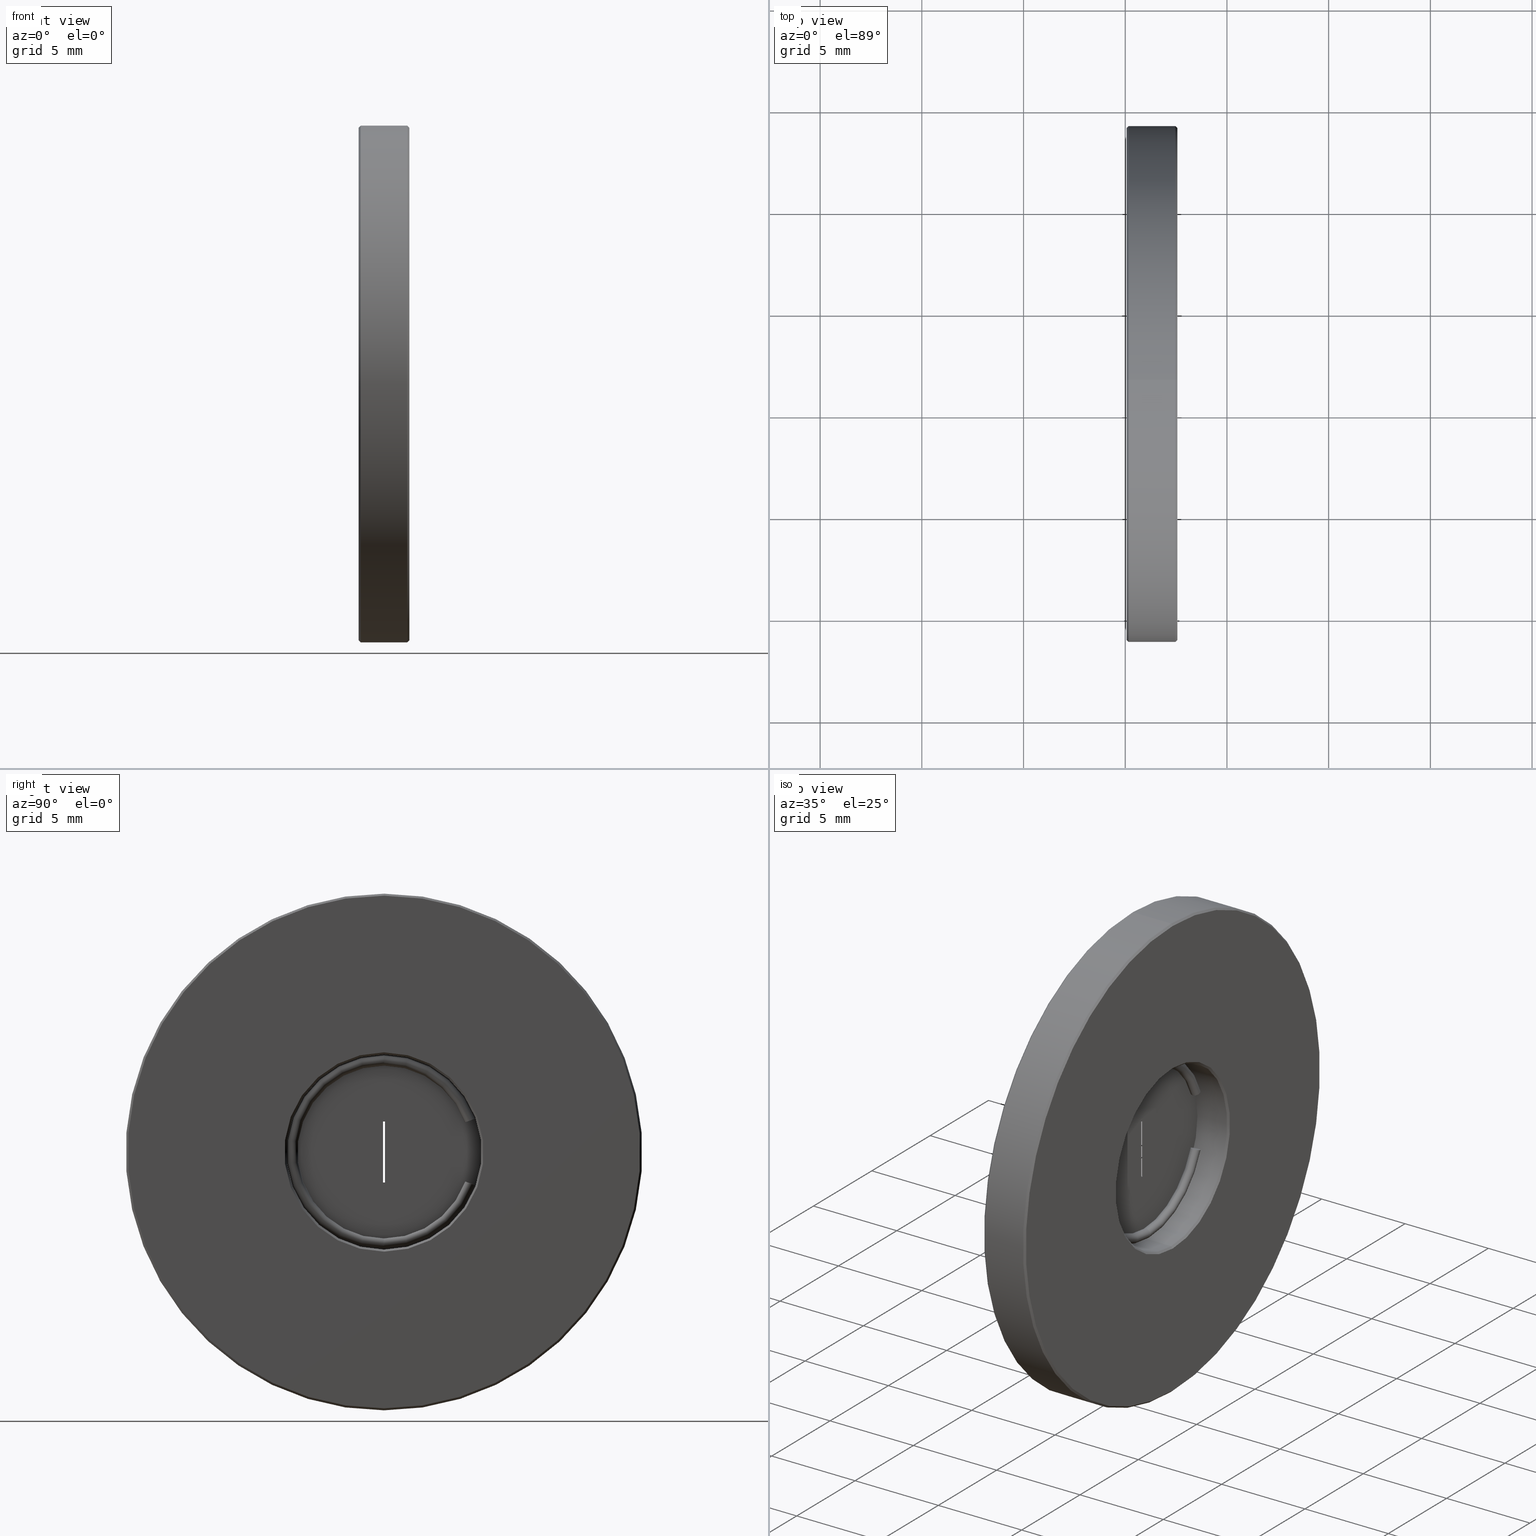
[diagram: canonical four-view strip — front | top / right | iso, engineering-drawing reading convention]
A machine part, canonical four-view strip (front | top / right | iso — engineering-drawing reading convention). The complete STEP part file that produces these views, byte-faithful:
ISO-10303-21;
HEADER;
FILE_DESCRIPTION (( 'STEP AP203' ),
    '1' );
FILE_NAME ('528059.STEP',
    '2023-04-06T08:14:51',
    ( '1337953205@qq.com' ),
    ( '' ),
    'SwSTEP 2.0',
    'SolidWorks 2020',
    '' );
FILE_SCHEMA (( 'CONFIG_CONTROL_DESIGN' ));
ENDSEC;

DATA;
#1 = VERTEX_POINT ( 'NONE', #20 ) ;
#2 = EDGE_LOOP ( 'NONE', ( #785, #799, #559, #888 ) ) ;
#3 = DIRECTION ( 'NONE',  ( 1.000000000000000000, -3.053113317719177725E-15, -1.221245326846538123E-15 ) ) ;
#4 = EDGE_CURVE ( 'NONE', #501, #435, #821, .T. ) ;
#5 = VECTOR ( 'NONE', #566, 1000.000000000000000 ) ;
#6 = FACE_OUTER_BOUND ( 'NONE', #942, .T. ) ;
#7 = ORIENTED_EDGE ( 'NONE', *, *, #367, .F. ) ;
#8 = EDGE_LOOP ( 'NONE', ( #366, #363, #67, #74 ) ) ;
#9 = DIRECTION ( 'NONE',  ( 0.000000000000000000, 0.000000000000000000, -1.000000000000000000 ) ) ;
#10 = VERTEX_POINT ( 'NONE', #885 ) ;
#11 = CARTESIAN_POINT ( 'NONE',  ( -2.434863851252999645, 1.436758841085000071, 38.09999999999999432 ) ) ;
#12 = DIRECTION ( 'NONE',  ( 1.000000000000000000, 0.000000000000000000, 0.000000000000000000 ) ) ;
#13 = LOCAL_TIME ( 16, 14, 51.00000000000000000, #740 ) ;
#14 = EDGE_LOOP ( 'NONE', ( #277, #653, #419, #729 ) ) ;
#15 = ORIENTED_EDGE ( 'NONE', *, *, #608, .T. ) ;
#16 = EDGE_CURVE ( 'NONE', #374, #205, #596, .T. ) ;
#17 = AXIS2_PLACEMENT_3D ( 'NONE', #207, #730, #649 ) ;
#18 = CARTESIAN_POINT ( 'NONE',  ( -4.034863851253000178, 1.436758840805285820, 21.14999999999999858 ) ) ;
#19 = CIRCLE ( 'NONE', #877, 0.2500000000000002220 ) ;
#20 = CARTESIAN_POINT ( 'NONE',  ( -4.934863851252999645, 1.436758841085001626, 38.00000000000000000 ) ) ;
#21 = PRODUCT_DEFINITION ( 'δ֪', '', #346, #263 ) ;
#22 = EDGE_CURVE ( 'NONE', #734, #784, #595, .T. ) ;
#23 = DIRECTION ( 'NONE',  ( 0.000000000000000000, 0.000000000000000000, 1.000000000000000000 ) ) ;
#24 = EDGE_CURVE ( 'NONE', #137, #934, #270, .T. ) ;
#25 = CARTESIAN_POINT ( 'NONE',  ( -4.034863851253000178, 1.436758841085000071, 25.39999999999999858 ) ) ;
#26 = CIRCLE ( 'NONE', #391, 0.2500000000000002220 ) ;
#27 = DATE_AND_TIME ( #817, #548 ) ;
#28 = CARTESIAN_POINT ( 'NONE',  ( -2.434863851252999645, 1.436758841085000071, 25.39999999999999858 ) ) ;
#29 = EDGE_CURVE ( 'NONE', #784, #867, #810, .T. ) ;
#30 = DIRECTION ( 'NONE',  ( 1.000000000000000000, -3.469446951953611033E-15, 0.000000000000000000 ) ) ;
#31 = DIRECTION ( 'NONE',  ( -1.000000000000000000, 0.000000000000000000, 0.000000000000000000 ) ) ;
#32 = PLANE ( 'NONE',  #509 ) ;
#33 = CARTESIAN_POINT ( 'NONE',  ( -4.034863851252994849, 1.436758840788832314, 20.89999999999999858 ) ) ;
#34 = ADVANCED_FACE ( 'NONE', ( #175 ), #666, .T. ) ;
#35 = CARTESIAN_POINT ( 'NONE',  ( -4.284863851253000178, 1.386758841085000027, 23.89999999999999858 ) ) ;
#36 = CYLINDRICAL_SURFACE ( 'NONE', #119, 3.700000000000001954 ) ;
#37 = DIRECTION ( 'NONE',  ( 0.7071067811865415775, 8.659560562355003116E-17, 0.7071067811865535679 ) ) ;
#38 = ADVANCED_FACE ( 'NONE', ( #758 ), #931, .F. ) ;
#39 = CARTESIAN_POINT ( 'NONE',  ( -4.334863851253000000, 1.436758841085000071, 25.39999999999999858 ) ) ;
#40 = AXIS2_PLACEMENT_3D ( 'NONE', #25, #685, #763 ) ;
#41 = DIRECTION ( 'NONE',  ( -1.000000000000000000, 0.000000000000000000, 0.000000000000000000 ) ) ;
#42 = DIRECTION ( 'NONE',  ( -1.000000000000000000, 0.000000000000000000, 0.000000000000000000 ) ) ;
#43 = AXIS2_PLACEMENT_3D ( 'NONE', #178, #855, #113 ) ;
#44 = CARTESIAN_POINT ( 'NONE',  ( -18.51131405003469865, 1.436758841085000071, 25.39999999999999858 ) ) ;
#45 = APPROVAL_PERSON_ORGANIZATION ( #224, #896, #169 ) ;
#46 = ORIENTED_EDGE ( 'NONE', *, *, #29, .F. ) ;
#47 = DIRECTION ( 'NONE',  ( 0.000000000000000000, 0.000000000000000000, -1.000000000000000000 ) ) ;
#48 = AXIS2_PLACEMENT_3D ( 'NONE', #709, #58, #428 ) ;
#49 = FACE_BOUND ( 'NONE', #352, .T. ) ;
#50 = AXIS2_PLACEMENT_3D ( 'NONE', #401, #912, #762 ) ;
#51 = CC_DESIGN_PERSON_AND_ORGANIZATION_ASSIGNMENT ( #606, #81, ( #518 ) ) ;
#52 = ORIENTED_EDGE ( 'NONE', *, *, #414, .T. ) ;
#53 = CARTESIAN_POINT ( 'NONE',  ( -4.284863851253000178, 1.486758841084999894, 26.89999999999999858 ) ) ;
#54 = DIRECTION ( 'NONE',  ( 0.000000000000000000, 0.000000000000000000, -1.000000000000000000 ) ) ;
#55 = EDGE_LOOP ( 'NONE', ( #448, #933 ) ) ;
#56 = VERTEX_POINT ( 'NONE', #547 ) ;
#57 = DIRECTION ( 'NONE',  ( 0.000000000000000000, 1.000000000000000000, 0.000000000000000000 ) ) ;
#58 = DIRECTION ( 'NONE',  ( 1.000000000000000000, 0.000000000000000000, 0.000000000000000000 ) ) ;
#59 = EDGE_CURVE ( 'NONE', #222, #934, #754, .T. ) ;
#60 = ORIENTED_EDGE ( 'NONE', *, *, #300, .T. ) ;
#61 = VERTEX_POINT ( 'NONE', #554 ) ;
#62 = CARTESIAN_POINT ( 'NONE',  ( -4.834863851252999112, 1.436758841085000071, 25.39999999999999858 ) ) ;
#63 = LINE ( 'NONE', #645, #795 ) ;
#64 = CIRCLE ( 'NONE', #331, 0.2500000000000002220 ) ;
#65 = VECTOR ( 'NONE', #37, 1000.000000000000000 ) ;
#66 = ORIENTED_EDGE ( 'NONE', *, *, #142, .T. ) ;
#67 = ORIENTED_EDGE ( 'NONE', *, *, #409, .T. ) ;
#68 = CARTESIAN_POINT ( 'NONE',  ( -4.284863851253000178, 1.486758841084999894, 26.89999999999999858 ) ) ;
#69 = AXIS2_PLACEMENT_3D ( 'NONE', #887, #94, #226 ) ;
#70 = EDGE_LOOP ( 'NONE', ( #343, #218, #357, #665 ) ) ;
#71 = EDGE_LOOP ( 'NONE', ( #862, #648, #515, #928 ) ) ;
#72 = FACE_OUTER_BOUND ( 'NONE', #881, .T. ) ;
#73 = AXIS2_PLACEMENT_3D ( 'NONE', #373, #676, #159 ) ;
#74 = ORIENTED_EDGE ( 'NONE', *, *, #865, .T. ) ;
#75 = EDGE_CURVE ( 'NONE', #121, #212, #26, .T. ) ;
#76 = DIRECTION ( 'NONE',  ( 3.469446951953611033E-15, -0.9396926207634005435, 0.3420201433875083574 ) ) ;
#77 = ORIENTED_EDGE ( 'NONE', *, *, #717, .T. ) ;
#78 = CARTESIAN_POINT ( 'NONE',  ( -2.434863851252999645, 1.436758841085000071, 20.49999999999999645 ) ) ;
#79 = ORIENTED_EDGE ( 'NONE', *, *, #476, .F. ) ;
#80 = EDGE_LOOP ( 'NONE', ( #803, #415 ) ) ;
#81 = PERSON_AND_ORGANIZATION_ROLE ( 'classification_officer' ) ;
#82 = CARTESIAN_POINT ( 'NONE',  ( -4.284863851253000178, 1.436758841085000071, 25.39999999999999858 ) ) ;
#83 = EDGE_LOOP ( 'NONE', ( #496, #445 ) ) ;
#84 = EDGE_LOOP ( 'NONE', ( #594, #206 ) ) ;
#85 = EDGE_CURVE ( 'NONE', #867, #137, #903, .T. ) ;
#86 = DATE_AND_TIME ( #446, #13 ) ;
#87 = AXIS2_PLACEMENT_3D ( 'NONE', #532, #385, #152 ) ;
#88 = VECTOR ( 'NONE', #273, 1000.000000000000000 ) ;
#89 = FACE_OUTER_BOUND ( 'NONE', #84, .T. ) ;
#90 = AXIS2_PLACEMENT_3D ( 'NONE', #482, #909, #472 ) ;
#91 = ORIENTED_EDGE ( 'NONE', *, *, #510, .F. ) ;
#92 = APPLICATION_PROTOCOL_DEFINITION ( 'international standard', 'config_control_design', 1994, #718 ) ;
#93 = AXIS2_PLACEMENT_3D ( 'NONE', #441, #512, #286 ) ;
#94 = DIRECTION ( 'NONE',  ( 1.000000000000000000, 0.000000000000000000, 0.000000000000000000 ) ) ;
#95 = AXIS2_PLACEMENT_3D ( 'NONE', #194, #490, #203 ) ;
#96 = AXIS2_PLACEMENT_3D ( 'NONE', #44, #244, #545 ) ;
#97 = EDGE_CURVE ( 'NONE', #297, #154, #321, .T. ) ;
#98 = CARTESIAN_POINT ( 'NONE',  ( -2.534863851253000178, 1.436758841085000071, 25.39999999999999858 ) ) ;
#99 = EDGE_CURVE ( 'NONE', #56, #121, #190, .T. ) ;
#100 = APPROVAL_ROLE ( '' ) ;
#101 = PLANE ( 'NONE',  #750 ) ;
#102 = ADVANCED_FACE ( 'NONE', ( #324 ), #342, .T. ) ;
#103 = AXIS2_PLACEMENT_3D ( 'NONE', #528, #823, #523 ) ;
#104 = DIRECTION ( 'NONE',  ( 1.000000000000000000, 0.000000000000000000, 0.000000000000000000 ) ) ;
#105 = DIRECTION ( 'NONE',  ( 1.000000000000000000, -3.053113317719177725E-15, -1.221245326846538123E-15 ) ) ;
#106 = CARTESIAN_POINT ( 'NONE',  ( -4.284863851253000178, 6.186758841085000071, 25.39999999999999858 ) ) ;
#107 = DIRECTION ( 'NONE',  ( -3.053113317638805026E-15, -1.000000000000000000, 6.581508406600454517E-11 ) ) ;
#108 = EDGE_CURVE ( 'NONE', #374, #722, #422, .T. ) ;
#109 = CYLINDRICAL_SURFACE ( 'NONE', #163, 3.700000000000001954 ) ;
#110 = DIRECTION ( 'NONE',  ( 0.000000000000000000, 0.000000000000000000, 1.000000000000000000 ) ) ;
#111 = CARTESIAN_POINT ( 'NONE',  ( -4.034863851253006395, 1.436758840772378365, 20.64999999999999858 ) ) ;
#112 = CARTESIAN_POINT ( 'NONE',  ( -4.284863851253000178, 1.436758841085000071, 25.39999999999999858 ) ) ;
#113 = DIRECTION ( 'NONE',  ( 1.000000000000000000, 7.239954656432090073E-27, 1.100029575852693904E-16 ) ) ;
#114 = CARTESIAN_POINT ( 'NONE',  ( -4.284863851253000178, -3.313241158914999929, 25.39999999999999858 ) ) ;
#115 = AXIS2_PLACEMENT_3D ( 'NONE', #470, #464, #393 ) ;
#116 = CARTESIAN_POINT ( 'NONE',  ( -4.334863851253000000, 1.436758841085000071, 25.39999999999999858 ) ) ;
#117 = CARTESIAN_POINT ( 'NONE',  ( -4.934863851252999645, 1.436758841085000071, 25.39999999999999858 ) ) ;
#118 = EDGE_CURVE ( 'NONE', #520, #507, #162, .T. ) ;
#119 = AXIS2_PLACEMENT_3D ( 'NONE', #117, #489, #345 ) ;
#120 = FACE_OUTER_BOUND ( 'NONE', #647, .T. ) ;
#121 = VERTEX_POINT ( 'NONE', #111 ) ;
#122 = FACE_OUTER_BOUND ( 'NONE', #492, .T. ) ;
#123 = AXIS2_PLACEMENT_3D ( 'NONE', #124, #724, #128 ) ;
#124 = CARTESIAN_POINT ( 'NONE',  ( -2.534863851253000178, 1.436758841085000071, 25.39999999999999858 ) ) ;
#125 = EDGE_LOOP ( 'NONE', ( #581, #563, #15, #143 ) ) ;
#126 = EDGE_LOOP ( 'NONE', ( #667, #285, #294, #370 ) ) ;
#127 = DIRECTION ( 'NONE',  ( -0.7071067811865510144, 0.000000000000000000, 0.7071067811865441310 ) ) ;
#128 = DIRECTION ( 'NONE',  ( 0.000000000000000000, 0.000000000000000000, -1.000000000000000000 ) ) ;
#129 = ADVANCED_FACE ( 'NONE', ( #612, #900 ), #402, .F. ) ;
#130 = ORIENTED_EDGE ( 'NONE', *, *, #549, .F. ) ;
#131 = ORIENTED_EDGE ( 'NONE', *, *, #85, .F. ) ;
#132 = CARTESIAN_POINT ( 'NONE',  ( -2.434863851252999645, 1.436758841085000071, 25.39999999999999858 ) ) ;
#133 = CARTESIAN_POINT ( 'NONE',  ( -2.434863851252999645, 1.436758841085000071, 25.39999999999999858 ) ) ;
#134 = AXIS2_PLACEMENT_3D ( 'NONE', #322, #686, #177 ) ;
#135 = ADVANCED_FACE ( 'NONE', ( #245 ), #542, .T. ) ;
#136 = ORIENTED_EDGE ( 'NONE', *, *, #99, .T. ) ;
#137 = VERTEX_POINT ( 'NONE', #78 ) ;
#138 = CARTESIAN_POINT ( 'NONE',  ( -4.284863851253000178, 1.486758841084999894, 26.89999999999999858 ) ) ;
#139 = FACE_OUTER_BOUND ( 'NONE', #125, .T. ) ;
#140 = CIRCLE ( 'NONE', #602, 12.69999999999999929 ) ;
#141 = AXIS2_PLACEMENT_3D ( 'NONE', #279, #503, #940 ) ;
#142 = EDGE_CURVE ( 'NONE', #501, #507, #156, .T. ) ;
#143 = ORIENTED_EDGE ( 'NONE', *, *, #768, .T. ) ;
#144 = ORIENTED_EDGE ( 'NONE', *, *, #818, .F. ) ;
#145 = DIRECTION ( 'NONE',  ( 2.191821476484100505E-15, -0.3420201433875058039, -0.9396926207634015427 ) ) ;
#146 = EDGE_CURVE ( 'NONE', #873, #425, #944, .T. ) ;
#147 = ORIENTED_EDGE ( 'NONE', *, *, #249, .F. ) ;
#148 = FACE_OUTER_BOUND ( 'NONE', #444, .T. ) ;
#149 = ORIENTED_EDGE ( 'NONE', *, *, #478, .T. ) ;
#150 = VECTOR ( 'NONE', #236, 1000.000000000000000 ) ;
#151 = ORGANIZATION ( 'δָ��', 'δָ��', '' ) ;
#152 = DIRECTION ( 'NONE',  ( 0.000000000000000000, 1.000000000000000000, 0.000000000000000000 ) ) ;
#153 = ORIENTED_EDGE ( 'NONE', *, *, #571, .F. ) ;
#154 = VERTEX_POINT ( 'NONE', #600 ) ;
#155 = PERSON_AND_ORGANIZATION ( #782, #151 ) ;
#156 = LINE ( 'NONE', #742, #239 ) ;
#157 = ORIENTED_EDGE ( 'NONE', *, *, #818, .T. ) ;
#158 = ORIENTED_EDGE ( 'NONE', *, *, #409, .F. ) ;
#159 = DIRECTION ( 'NONE',  ( 0.000000000000000000, 0.000000000000000000, 1.000000000000000000 ) ) ;
#160 = CARTESIAN_POINT ( 'NONE',  ( -4.934863851252999645, 1.436758841085000071, 21.69999999999999574 ) ) ;
#161 = PERSON_AND_ORGANIZATION_ROLE ( 'design_owner' ) ;
#162 = CIRCLE ( 'NONE', #695, 3.800000000000001155 ) ;
#163 = AXIS2_PLACEMENT_3D ( 'NONE', #198, #560, #692 ) ;
#164 = CARTESIAN_POINT ( 'NONE',  ( -4.334863851253000000, 1.436758841085000071, 25.39999999999999858 ) ) ;
#165 = AXIS2_PLACEMENT_3D ( 'NONE', #465, #613, #183 ) ;
#166 = DATE_TIME_ROLE ( 'classification_date' ) ;
#167 = DIRECTION ( 'NONE',  ( 0.7071067811865415775, 0.000000000000000000, -0.7071067811865535679 ) ) ;
#168 = AXIS2_PLACEMENT_3D ( 'NONE', #400, #924, #473 ) ;
#169 = APPROVAL_ROLE ( '' ) ;
#170 = LINE ( 'NONE', #541, #65 ) ;
#171 = DIRECTION ( 'NONE',  ( 0.000000000000000000, 0.000000000000000000, -1.000000000000000000 ) ) ;
#172 = CARTESIAN_POINT ( 'NONE',  ( -4.284863851253000178, 6.186758841085000071, 25.39999999999999858 ) ) ;
#173 = DIRECTION ( 'NONE',  ( -1.000000000000000000, 0.000000000000000000, 0.000000000000000000 ) ) ;
#174 = VECTOR ( 'NONE', #604, 1000.000000000000000 ) ;
#175 = FACE_OUTER_BOUND ( 'NONE', #937, .T. ) ;
#176 = ADVANCED_FACE ( 'NONE', ( #6 ), #610, .T. ) ;
#177 = DIRECTION ( 'NONE',  ( 3.104242009642707308E-15, 1.000000000000000000, -6.581577388350236595E-11 ) ) ;
#178 = CARTESIAN_POINT ( 'NONE',  ( -4.034863851253018829, 5.665375634722910725, 26.93909064468711634 ) ) ;
#179 = DIRECTION ( 'NONE',  ( 0.000000000000000000, 0.000000000000000000, 1.000000000000000000 ) ) ;
#180 = CARTESIAN_POINT ( 'NONE',  ( -4.934863851252999645, 1.436758841085000071, 25.39999999999999858 ) ) ;
#181 = AXIS2_PLACEMENT_3D ( 'NONE', #353, #787, #868 ) ;
#182 = EDGE_CURVE ( 'NONE', #191, #895, #657, .T. ) ;
#183 = DIRECTION ( 'NONE',  ( 0.000000000000000000, -0.9396926207634013206, 0.3420201433875062480 ) ) ;
#184 = CARTESIAN_POINT ( 'NONE',  ( -4.034863851253018829, 5.665375634520317227, 23.86090935475618835 ) ) ;
#185 = FACE_OUTER_BOUND ( 'NONE', #71, .T. ) ;
#186 = EDGE_CURVE ( 'NONE', #731, #297, #443, .T. ) ;
#187 = CARTESIAN_POINT ( 'NONE',  ( -4.284863851253000178, 1.436758841085000071, 25.39999999999999858 ) ) ;
#188 = DIRECTION ( 'NONE',  ( 3.061276722312012589E-15, 1.000000000000000000, -6.581581684878969820E-11 ) ) ;
#189 = LINE ( 'NONE', #106, #259 ) ;
#190 = CIRCLE ( 'NONE', #40, 4.750000000000000000 ) ;
#191 = VERTEX_POINT ( 'NONE', #380 ) ;
#192 = ADVANCED_FACE ( 'NONE', ( #231 ), #807, .F. ) ;
#193 = CARTESIAN_POINT ( 'NONE',  ( -4.934863851252999645, 1.436758841085000071, 25.39999999999999858 ) ) ;
#194 = CARTESIAN_POINT ( 'NONE',  ( -4.284863851253000178, 1.436758841085000071, 25.39999999999999858 ) ) ;
#195 = VERTEX_POINT ( 'NONE', #452 ) ;
#196 = ORIENTED_EDGE ( 'NONE', *, *, #689, .F. ) ;
#197 = EDGE_CURVE ( 'NONE', #893, #501, #375, .T. ) ;
#198 = CARTESIAN_POINT ( 'NONE',  ( -4.934863851252999645, 1.436758841085000071, 25.39999999999999858 ) ) ;
#199 = DIRECTION ( 'NONE',  ( -1.221245327047478942E-15, -6.581508912423552347E-11, -1.000000000000000000 ) ) ;
#200 = ORIENTED_EDGE ( 'NONE', *, *, #438, .F. ) ;
#201 = ORIENTED_EDGE ( 'NONE', *, *, #182, .T. ) ;
#202 = DIRECTION ( 'NONE',  ( 0.000000000000000000, 1.000000000000000000, 0.000000000000000000 ) ) ;
#203 = DIRECTION ( 'NONE',  ( 0.000000000000000000, 1.000000000000000000, 0.000000000000000000 ) ) ;
#204 = ADVANCED_FACE ( 'NONE', ( #89, #368 ), #670, .F. ) ;
#205 = VERTEX_POINT ( 'NONE', #660 ) ;
#206 = ORIENTED_EDGE ( 'NONE', *, *, #269, .T. ) ;
#207 = CARTESIAN_POINT ( 'NONE',  ( -4.034863851253000178, 1.436758841085000071, 25.39999999999999858 ) ) ;
#208 = DIRECTION ( 'NONE',  ( 1.000000000000000000, 0.000000000000000000, 0.000000000000000000 ) ) ;
#209 = AXIS2_PLACEMENT_3D ( 'NONE', #480, #840, #493 ) ;
#210 = CC_DESIGN_SECURITY_CLASSIFICATION ( #518, ( #346 ) ) ;
#211 = ORIENTED_EDGE ( 'NONE', *, *, #577, .F. ) ;
#212 = VERTEX_POINT ( 'NONE', #18 ) ;
#213 = DIRECTION ( 'NONE',  ( 0.000000000000000000, 0.000000000000000000, -1.000000000000000000 ) ) ;
#214 = AXIS2_PLACEMENT_3D ( 'NONE', #68, #502, #508 ) ;
#215 = AXIS2_PLACEMENT_3D ( 'NONE', #133, #704, #54 ) ;
#216 = CC_DESIGN_PERSON_AND_ORGANIZATION_ASSIGNMENT ( #382, #668, ( #21 ) ) ;
#217 = ORIENTED_EDGE ( 'NONE', *, *, #182, .F. ) ;
#218 = ORIENTED_EDGE ( 'NONE', *, *, #290, .F. ) ;
#219 = DIRECTION ( 'NONE',  ( 0.000000000000000000, 0.000000000000000000, -1.000000000000000000 ) ) ;
#220 = VERTEX_POINT ( 'NONE', #299 ) ;
#221 = CARTESIAN_POINT ( 'NONE',  ( -4.034863851252984190, 5.900298789925018994, 27.02459568050306515 ) ) ;
#222 = VERTEX_POINT ( 'NONE', #313 ) ;
#223 = DIRECTION ( 'NONE',  ( -1.000000000000000000, 0.000000000000000000, 0.000000000000000000 ) ) ;
#224 = PERSON_AND_ORGANIZATION ( #782, #151 ) ;
#225 = VECTOR ( 'NONE', #314, 1000.000000000000000 ) ;
#226 = DIRECTION ( 'NONE',  ( 0.000000000000000000, 0.000000000000000000, -1.000000000000000000 ) ) ;
#227 = ORIENTED_EDGE ( 'NONE', *, *, #348, .T. ) ;
#228 = ORIENTED_EDGE ( 'NONE', *, *, #705, .F. ) ;
#229 = EDGE_CURVE ( 'NONE', #722, #895, #737, .T. ) ;
#230 = AXIS2_PLACEMENT_3D ( 'NONE', #457, #364, #747 ) ;
#231 = FACE_OUTER_BOUND ( 'NONE', #701, .T. ) ;
#232 = VERTEX_POINT ( 'NONE', #894 ) ;
#233 = ORIENTED_EDGE ( 'NONE', *, *, #372, .T. ) ;
#234 = COORDINATED_UNIVERSAL_TIME_OFFSET ( 8, 0, .AHEAD. ) ;
#235 = DIRECTION ( 'NONE',  ( -1.000000000000000000, 0.000000000000000000, 0.000000000000000000 ) ) ;
#236 = DIRECTION ( 'NONE',  ( -1.000000000000000000, 0.000000000000000000, 0.000000000000000000 ) ) ;
#237 = APPROVAL_STATUS ( 'not_yet_approved' ) ;
#238 = EDGE_CURVE ( 'NONE', #507, #520, #710, .T. ) ;
#239 = VECTOR ( 'NONE', #819, 999.9999999999998863 ) ;
#240 = CIRCLE ( 'NONE', #622, 12.59999999999999964 ) ;
#241 = DIRECTION ( 'NONE',  ( 0.000000000000000000, -1.000000000000000000, 0.000000000000000000 ) ) ;
#242 = CARTESIAN_POINT ( 'NONE',  ( -4.334863851253000000, -3.313241158914999929, 25.39999999999999858 ) ) ;
#243 = FACE_BOUND ( 'NONE', #721, .T. ) ;
#244 = DIRECTION ( 'NONE',  ( 1.000000000000000000, 0.000000000000000000, 0.000000000000000000 ) ) ;
#245 = FACE_OUTER_BOUND ( 'NONE', #633, .T. ) ;
#246 = CARTESIAN_POINT ( 'NONE',  ( -4.334863851253000000, 1.486758841084999894, 26.89999999999999858 ) ) ;
#247 = CYLINDRICAL_SURFACE ( 'NONE', #96, 4.799999999999998934 ) ;
#248 = AXIS2_PLACEMENT_3D ( 'NONE', #732, #296, #898 ) ;
#249 = EDGE_CURVE ( 'NONE', #284, #56, #837, .T. ) ;
#250 = DIRECTION ( 'NONE',  ( 0.000000000000000000, 0.000000000000000000, -1.000000000000000000 ) ) ;
#251 = VECTOR ( 'NONE', #127, 999.9999999999998863 ) ;
#252 = APPROVAL_PERSON_ORGANIZATION ( #451, #289, #386 ) ;
#253 = FACE_OUTER_BOUND ( 'NONE', #356, .T. ) ;
#254 = CARTESIAN_POINT ( 'NONE',  ( -2.534863851253000178, 1.436758841085001626, 12.69999999999999929 ) ) ;
#255 = DIRECTION ( 'NONE',  ( 1.000000000000000000, 0.000000000000000000, 0.000000000000000000 ) ) ;
#256 = DIRECTION ( 'NONE',  ( 0.7071067811865505703, 8.659560562354882322E-17, 0.7071067811865444641 ) ) ;
#257 = VECTOR ( 'NONE', #278, 1000.000000000000000 ) ;
#258 = AXIS2_PLACEMENT_3D ( 'NONE', #572, #433, #199 ) ;
#259 = VECTOR ( 'NONE', #396, 1000.000000000000000 ) ;
#260 = FACE_OUTER_BOUND ( 'NONE', #739, .T. ) ;
#261 = DIRECTION ( 'NONE',  ( 0.000000000000000000, 0.000000000000000000, -1.000000000000000000 ) ) ;
#262 = DIRECTION ( 'NONE',  ( -1.000000000000000000, 0.000000000000000000, 0.000000000000000000 ) ) ;
#263 = DESIGN_CONTEXT ( 'detailed design', #718, 'design' ) ;
#264 = EDGE_CURVE ( 'NONE', #435, #10, #403, .T. ) ;
#265 = ORIENTED_EDGE ( 'NONE', *, *, #118, .F. ) ;
#266 = DIRECTION ( 'NONE',  ( 3.469446951953611033E-15, -0.9396926207634005435, 0.3420201433875083574 ) ) ;
#267 = CYLINDRICAL_SURFACE ( 'NONE', #95, 4.750000000000000000 ) ;
#268 = EDGE_CURVE ( 'NONE', #61, #642, #359, .T. ) ;
#269 = EDGE_CURVE ( 'NONE', #1, #191, #607, .T. ) ;
#270 = CIRCLE ( 'NONE', #711, 4.900000000000001243 ) ;
#271 = VERTEX_POINT ( 'NONE', #882 ) ;
#272 = ORIENTED_EDGE ( 'NONE', *, *, #736, .F. ) ;
#273 = DIRECTION ( 'NONE',  ( -0.7071067811865415775, 0.000000000000000000, 0.7071067811865535679 ) ) ;
#274 = AXIS2_PLACEMENT_3D ( 'NONE', #187, #540, #395 ) ;
#275 = CARTESIAN_POINT ( 'NONE',  ( -4.934863851252999645, 1.436758841085000515, 21.59999999999999787 ) ) ;
#276 = ORIENTED_EDGE ( 'NONE', *, *, #476, .T. ) ;
#277 = ORIENTED_EDGE ( 'NONE', *, *, #549, .T. ) ;
#278 = DIRECTION ( 'NONE',  ( -1.000000000000000000, 0.000000000000000000, 0.000000000000000000 ) ) ;
#279 = CARTESIAN_POINT ( 'NONE',  ( -4.284863851253000178, 1.486758841084999894, 26.89999999999999858 ) ) ;
#280 = ORIENTED_EDGE ( 'NONE', *, *, #197, .T. ) ;
#281 = ORIENTED_EDGE ( 'NONE', *, *, #24, .T. ) ;
#282 = FACE_OUTER_BOUND ( 'NONE', #661, .T. ) ;
#283 = PLANE ( 'NONE',  #141 ) ;
#284 = VERTEX_POINT ( 'NONE', #221 ) ;
#285 = ORIENTED_EDGE ( 'NONE', *, *, #197, .F. ) ;
#286 = DIRECTION ( 'NONE',  ( 3.061276722312012589E-15, 1.000000000000000000, -6.581581684878969820E-11 ) ) ;
#287 = AXIS2_PLACEMENT_3D ( 'NONE', #624, #761, #261 ) ;
#288 = LOCAL_TIME ( 16, 14, 51.00000000000000000, #454 ) ;
#289 = APPROVAL ( #237, 'δָ��' ) ;
#290 = EDGE_CURVE ( 'NONE', #297, #857, #519, .T. ) ;
#291 = VERTEX_POINT ( 'NONE', #242 ) ;
#292 = ORIENTED_EDGE ( 'NONE', *, *, #768, .F. ) ;
#293 = CARTESIAN_POINT ( 'NONE',  ( -4.284863851253000178, 1.386758841085000027, 26.89999999999999858 ) ) ;
#294 = ORIENTED_EDGE ( 'NONE', *, *, #635, .T. ) ;
#295 = TOROIDAL_SURFACE ( 'NONE', #258, 4.500000000000000000, 0.2500000000000000000 ) ;
#296 = DIRECTION ( 'NONE',  ( 1.000000000000000000, -3.053113317719177725E-15, -1.221245326846538123E-15 ) ) ;
#297 = VERTEX_POINT ( 'NONE', #474 ) ;
#298 = DIRECTION ( 'NONE',  ( 0.000000000000000000, 0.000000000000000000, -1.000000000000000000 ) ) ;
#299 = CARTESIAN_POINT ( 'NONE',  ( -4.034863851252988631, 5.900298789711156289, 23.77540431890931671 ) ) ;
#300 = EDGE_CURVE ( 'NONE', #301, #707, #688, .T. ) ;
#301 = VERTEX_POINT ( 'NONE', #906 ) ;
#302 = ORIENTED_EDGE ( 'NONE', *, *, #926, .F. ) ;
#303 = CALENDAR_DATE ( 2023, 6, 4 ) ;
#304 = VECTOR ( 'NONE', #104, 1000.000000000000000 ) ;
#305 = VECTOR ( 'NONE', #764, 1000.000000000000000 ) ;
#306 = CARTESIAN_POINT ( 'NONE',  ( -18.51131405003469865, 1.436758841085000071, 25.39999999999999858 ) ) ;
#307 = VERTEX_POINT ( 'NONE', #484 ) ;
#308 = EDGE_CURVE ( 'NONE', #1, #205, #170, .T. ) ;
#309 = ORIENTED_EDGE ( 'NONE', *, *, #4, .F. ) ;
#310 =( NAMED_UNIT ( * ) SI_UNIT ( $, .STERADIAN. ) SOLID_ANGLE_UNIT ( ) );
#311 = AXIS2_PLACEMENT_3D ( 'NONE', #943, #723, #213 ) ;
#312 = CIRCLE ( 'NONE', #50, 0.2500000000000000000 ) ;
#313 = CARTESIAN_POINT ( 'NONE',  ( -2.534863851253000178, 1.436758841085000737, 30.19999999999999929 ) ) ;
#314 = DIRECTION ( 'NONE',  ( 1.000000000000000000, 0.000000000000000000, 0.000000000000000000 ) ) ;
#315 = CARTESIAN_POINT ( 'NONE',  ( -4.834863851252998224, 1.436758841085000071, 25.39999999999999858 ) ) ;
#316 = APPROVAL_DATE_TIME ( #517, #289 ) ;
#317 = APPROVAL ( #611, 'δָ��' ) ;
#318 = DIRECTION ( 'NONE',  ( 1.000000000000000000, 0.000000000000000000, 0.000000000000000000 ) ) ;
#319 = DATE_TIME_ROLE ( 'creation_date' ) ;
#320 = FACE_OUTER_BOUND ( 'NONE', #369, .T. ) ;
#321 = LINE ( 'NONE', #678, #650 ) ;
#322 = CARTESIAN_POINT ( 'NONE',  ( -4.034863851253000178, 1.436758841085000071, 25.39999999999999858 ) ) ;
#323 = CARTESIAN_POINT ( 'NONE',  ( -2.434863851252999645, 1.436758841085000071, 25.39999999999999858 ) ) ;
#324 = FACE_OUTER_BOUND ( 'NONE', #365, .T. ) ;
#325 = CARTESIAN_POINT ( 'NONE',  ( -4.334863851253000000, 1.486758841084999894, 23.89999999999999858 ) ) ;
#326 = CYLINDRICAL_SURFACE ( 'NONE', #334, 12.69999999999999574 ) ;
#327 = LOCAL_TIME ( 16, 14, 51.00000000000000000, #663 ) ;
#328 = FACE_OUTER_BOUND ( 'NONE', #580, .T. ) ;
#329 = DIRECTION ( 'NONE',  ( 0.000000000000000000, 0.000000000000000000, -1.000000000000000000 ) ) ;
#330 = CARTESIAN_POINT ( 'NONE',  ( -4.284863851253000178, -3.313241158914999929, 25.39999999999999858 ) ) ;
#331 = AXIS2_PLACEMENT_3D ( 'NONE', #727, #145, #76 ) ;
#332 = CONICAL_SURFACE ( 'NONE', #215, 4.900000000000001243, 0.7853981633974433940 ) ;
#333 = ORIENTED_EDGE ( 'NONE', *, *, #268, .T. ) ;
#334 = AXIS2_PLACEMENT_3D ( 'NONE', #625, #680, #110 ) ;
#335 = CARTESIAN_POINT ( 'NONE',  ( -2.434863851252999645, 1.436758841085001626, 12.79999999999999893 ) ) ;
#336 = ADVANCED_FACE ( 'NONE', ( #185 ), #326, .T. ) ;
#337 = DIRECTION ( 'NONE',  ( 3.053113317638805026E-15, 1.000000000000000000, -6.581520653068446578E-11 ) ) ;
#338 = ORIENTED_EDGE ( 'NONE', *, *, #16, .T. ) ;
#339 = DIRECTION ( 'NONE',  ( 0.000000000000000000, 0.000000000000000000, -1.000000000000000000 ) ) ;
#340 = CARTESIAN_POINT ( 'NONE',  ( -4.934863851252999645, 1.436758841085000071, 29.19999999999999929 ) ) ;
#341 = PRODUCT_DEFINITION_SHAPE ( 'NONE', 'NONE',  #21 ) ;
#342 = TOROIDAL_SURFACE ( 'NONE', #562, 4.500000000000000000, 0.2500000000000000000 ) ;
#343 = ORIENTED_EDGE ( 'NONE', *, *, #641, .F. ) ;
#344 = ORIENTED_EDGE ( 'NONE', *, *, #468, .F. ) ;
#345 = DIRECTION ( 'NONE',  ( 0.000000000000000000, 0.000000000000000000, -1.000000000000000000 ) ) ;
#346 = PRODUCT_DEFINITION_FORMATION_WITH_SPECIFIED_SOURCE ( '�κ�', '', #786, .NOT_KNOWN. ) ;
#347 = LINE ( 'NONE', #421, #5 ) ;
#348 = EDGE_CURVE ( 'NONE', #195, #56, #19, .T. ) ;
#349 = ADVANCED_BREP_SHAPE_REPRESENTATION ( '528059', ( #504, #802, #669 ), #427 ) ;
#350 = AXIS2_PLACEMENT_3D ( 'NONE', #801, #792, #582 ) ;
#351 = ORIENTED_EDGE ( 'NONE', *, *, #4, .T. ) ;
#352 = EDGE_LOOP ( 'NONE', ( #281, #450 ) ) ;
#353 = CARTESIAN_POINT ( 'NONE',  ( -4.034863851253018829, 5.665375634722910725, 26.93909064468711634 ) ) ;
#354 = DIRECTION ( 'NONE',  ( 0.000000000000000000, 1.000000000000000000, 0.000000000000000000 ) ) ;
#355 = ADVANCED_FACE ( 'NONE', ( #835 ), #675, .F. ) ;
#356 = EDGE_LOOP ( 'NONE', ( #144, #211 ) ) ;
#357 = ORIENTED_EDGE ( 'NONE', *, *, #97, .T. ) ;
#358 = ADVANCED_FACE ( 'NONE', ( #558 ), #589, .T. ) ;
#359 = CIRCLE ( 'NONE', #69, 12.59999999999999964 ) ;
#360 = ORIENTED_EDGE ( 'NONE', *, *, #468, .T. ) ;
#361 = ORIENTED_EDGE ( 'NONE', *, *, #926, .T. ) ;
#362 = AXIS2_PLACEMENT_3D ( 'NONE', #82, #514, #241 ) ;
#363 = ORIENTED_EDGE ( 'NONE', *, *, #146, .F. ) ;
#364 = DIRECTION ( 'NONE',  ( -1.000000000000000000, 0.000000000000000000, 0.000000000000000000 ) ) ;
#365 = EDGE_LOOP ( 'NONE', ( #147, #569, #800, #227 ) ) ;
#366 = ORIENTED_EDGE ( 'NONE', *, *, #372, .F. ) ;
#367 = EDGE_CURVE ( 'NONE', #284, #307, #312, .T. ) ;
#368 = FACE_BOUND ( 'NONE', #892, .T. ) ;
#369 = EDGE_LOOP ( 'NONE', ( #889, #77, #338, #879 ) ) ;
#370 = ORIENTED_EDGE ( 'NONE', *, *, #238, .F. ) ;
#371 = SECURITY_CLASSIFICATION_LEVEL ( 'unclassified' ) ;
#372 = EDGE_CURVE ( 'NONE', #425, #291, #832, .T. ) ;
#373 = CARTESIAN_POINT ( 'NONE',  ( -2.434863851252999645, 1.436758841085000071, 25.39999999999999858 ) ) ;
#374 = VERTEX_POINT ( 'NONE', #757 ) ;
#375 = CIRCLE ( 'NONE', #755, 3.700000000000001954 ) ;
#376 = ORIENTED_EDGE ( 'NONE', *, *, #654, .T. ) ;
#377 = PERSON_AND_ORGANIZATION ( #782, #151 ) ;
#378 = ADVANCED_FACE ( 'NONE', ( #49, #852 ), #32, .T. ) ;
#379 = CIRCLE ( 'NONE', #945, 4.250000000000000000 ) ;
#380 = CARTESIAN_POINT ( 'NONE',  ( -4.934863851252999645, 1.436758841085000071, 12.79999999999999893 ) ) ;
#381 = ORIENTED_EDGE ( 'NONE', *, *, #636, .T. ) ;
#382 = PERSON_AND_ORGANIZATION ( #782, #151 ) ;
#383 = CIRCLE ( 'NONE', #916, 4.900000000000001243 ) ;
#384 = VECTOR ( 'NONE', #494, 1000.000000000000000 ) ;
#385 = DIRECTION ( 'NONE',  ( 1.000000000000000000, 0.000000000000000000, 0.000000000000000000 ) ) ;
#386 = APPROVAL_ROLE ( '' ) ;
#387 = CC_DESIGN_DATE_AND_TIME_ASSIGNMENT ( #27, #319, ( #21 ) ) ;
#388 = DIRECTION ( 'NONE',  ( 0.7071067811865505703, 0.000000000000000000, -0.7071067811865444641 ) ) ;
#389 =( NAMED_UNIT ( * ) PLANE_ANGLE_UNIT ( ) SI_UNIT ( $, .RADIAN. ) );
#390 = DIRECTION ( 'NONE',  ( 3.053113317638805026E-15, 1.000000000000000000, -6.581520653068446578E-11 ) ) ;
#391 = AXIS2_PLACEMENT_3D ( 'NONE', #33, #107, #30 ) ;
#392 = APPLICATION_CONTEXT ( 'configuration controlled 3d designs of mechanical parts and assemblies' ) ;
#393 = DIRECTION ( 'NONE',  ( -1.221245327047478942E-15, -6.581508912423552347E-11, -1.000000000000000000 ) ) ;
#394 = CIRCLE ( 'NONE', #134, 4.750000000000000000 ) ;
#395 = DIRECTION ( 'NONE',  ( 0.000000000000000000, 0.000000000000000000, -1.000000000000000000 ) ) ;
#396 = DIRECTION ( 'NONE',  ( -1.000000000000000000, 0.000000000000000000, 0.000000000000000000 ) ) ;
#397 = ADVANCED_FACE ( 'NONE', ( #552, #847 ), #101, .T. ) ;
#398 = CARTESIAN_POINT ( 'NONE',  ( -2.434863851252999645, 1.436758841085000071, 20.49999999999999645 ) ) ;
#399 = CARTESIAN_POINT ( 'NONE',  ( -4.834863851252999112, 1.436758841085001626, 12.69999999999999929 ) ) ;
#400 = CARTESIAN_POINT ( 'NONE',  ( -4.284863851253000178, 1.436758841085000071, 25.39999999999999858 ) ) ;
#401 = CARTESIAN_POINT ( 'NONE',  ( -4.034863851253018829, 5.665375634722910725, 26.93909064468711634 ) ) ;
#402 = PLANE ( 'NONE',  #824 ) ;
#403 = CIRCLE ( 'NONE', #767, 3.700000000000001954 ) ;
#404 = CARTESIAN_POINT ( 'NONE',  ( -2.534863851253000178, 1.436758841085000071, 20.60000000000000142 ) ) ;
#405 = DIRECTION ( 'NONE',  ( 0.000000000000000000, 0.000000000000000000, -1.000000000000000000 ) ) ;
#406 = CARTESIAN_POINT ( 'NONE',  ( -2.534863851253000178, 1.436758841085000071, 25.39999999999999858 ) ) ;
#407 = VECTOR ( 'NONE', #388, 1000.000000000000114 ) ;
#408 = CONICAL_SURFACE ( 'NONE', #287, 12.69999999999999929, 0.7853981633974568277 ) ;
#409 = EDGE_CURVE ( 'NONE', #873, #271, #189, .T. ) ;
#410 = LINE ( 'NONE', #35, #553 ) ;
#411 = DIRECTION ( 'NONE',  ( 1.000000000000000000, -3.053113317719177725E-15, -1.221245326846538123E-15 ) ) ;
#412 = DIRECTION ( 'NONE',  ( -1.000000000000000000, 0.000000000000000000, 0.000000000000000000 ) ) ;
#413 = CIRCLE ( 'NONE', #536, 0.2500000000000002220 ) ;
#414 = EDGE_CURVE ( 'NONE', #222, #867, #434, .T. ) ;
#415 = ORIENTED_EDGE ( 'NONE', *, *, #919, .T. ) ;
#416 = CARTESIAN_POINT ( 'NONE',  ( -2.534863851253000178, 1.436758841085000071, 25.39999999999999858 ) ) ;
#417 = FACE_OUTER_BOUND ( 'NONE', #8, .T. ) ;
#418 = ORIENTED_EDGE ( 'NONE', *, *, #22, .T. ) ;
#419 = ORIENTED_EDGE ( 'NONE', *, *, #897, .T. ) ;
#420 = CARTESIAN_POINT ( 'NONE',  ( -4.334863851253000000, 1.386758841085000027, 26.89999999999999858 ) ) ;
#421 = CARTESIAN_POINT ( 'NONE',  ( -2.434863851252999645, 1.436758841085001626, 12.79999999999999893 ) ) ;
#422 = CIRCLE ( 'NONE', #546, 12.69999999999999929 ) ;
#423 = EDGE_LOOP ( 'NONE', ( #872, #743, #637, #131 ) ) ;
#424 = ADVANCED_FACE ( 'NONE', ( #120 ), #247, .F. ) ;
#425 = VERTEX_POINT ( 'NONE', #330 ) ;
#426 = DIRECTION ( 'NONE',  ( -1.000000000000000000, 0.000000000000000000, 0.000000000000000000 ) ) ;
#427 =( GEOMETRIC_REPRESENTATION_CONTEXT ( 3 ) GLOBAL_UNCERTAINTY_ASSIGNED_CONTEXT ( ( #485 ) ) GLOBAL_UNIT_ASSIGNED_CONTEXT ( ( #619, #389, #310 ) ) REPRESENTATION_CONTEXT ( 'NONE', 'WORKASPACE' ) );
#428 = DIRECTION ( 'NONE',  ( 0.000000000000000000, 0.000000000000000000, -1.000000000000000000 ) ) ;
#429 = AXIS2_PLACEMENT_3D ( 'NONE', #293, #202, #497 ) ;
#430 = ORIENTED_EDGE ( 'NONE', *, *, #458, .T. ) ;
#431 = ORIENTED_EDGE ( 'NONE', *, *, #22, .F. ) ;
#432 = DIRECTION ( 'NONE',  ( 0.000000000000000000, 0.000000000000000000, 1.000000000000000000 ) ) ;
#433 = DIRECTION ( 'NONE',  ( 1.000000000000000000, -3.053113317719177725E-15, -1.221245326846538123E-15 ) ) ;
#434 = CIRCLE ( 'NONE', #796, 4.799999999999998934 ) ;
#435 = VERTEX_POINT ( 'NONE', #841 ) ;
#436 = ORIENTED_EDGE ( 'NONE', *, *, #853, .F. ) ;
#437 = DIRECTION ( 'NONE',  ( -1.000000000000000000, 0.000000000000000000, 0.000000000000000000 ) ) ;
#438 = EDGE_CURVE ( 'NONE', #56, #195, #922, .T. ) ;
#439 = ORIENTED_EDGE ( 'NONE', *, *, #510, .T. ) ;
#440 = VECTOR ( 'NONE', #609, 1000.000000000000000 ) ;
#441 = CARTESIAN_POINT ( 'NONE',  ( -4.034863851253000178, 1.436758841085000071, 25.39999999999999858 ) ) ;
#442 = EDGE_LOOP ( 'NONE', ( #605, #816 ) ) ;
#443 = LINE ( 'NONE', #891, #440 ) ;
#444 = EDGE_LOOP ( 'NONE', ( #200, #136, #713, #638 ) ) ;
#445 = ORIENTED_EDGE ( 'NONE', *, *, #367, .T. ) ;
#446 = CALENDAR_DATE ( 2023, 6, 4 ) ;
#447 = DIRECTION ( 'NONE',  ( -1.000000000000000000, 0.000000000000000000, 0.000000000000000000 ) ) ;
#448 = ORIENTED_EDGE ( 'NONE', *, *, #865, .F. ) ;
#449 = ADVANCED_FACE ( 'NONE', ( #320 ), #535, .T. ) ;
#450 = ORIENTED_EDGE ( 'NONE', *, *, #741, .T. ) ;
#451 = PERSON_AND_ORGANIZATION ( #782, #151 ) ;
#452 = CARTESIAN_POINT ( 'NONE',  ( -4.034863851252997513, 1.436758841364714767, 29.64999999999999858 ) ) ;
#453 = ORIENTED_EDGE ( 'NONE', *, *, #478, .F. ) ;
#454 = COORDINATED_UNIVERSAL_TIME_OFFSET ( 8, 0, .AHEAD. ) ;
#455 = CIRCLE ( 'NONE', #744, 12.69999999999999929 ) ;
#456 = TOROIDAL_SURFACE ( 'NONE', #681, 4.500000000000000000, 0.2500000000000000000 ) ;
#457 = CARTESIAN_POINT ( 'NONE',  ( -4.934863851252999645, 1.436758841085000071, 25.39999999999999858 ) ) ;
#458 = EDGE_CURVE ( 'NONE', #893, #10, #860, .T. ) ;
#459 = AXIS2_PLACEMENT_3D ( 'NONE', #614, #716, #776 ) ;
#460 = AXIS2_PLACEMENT_3D ( 'NONE', #771, #173, #463 ) ;
#461 = DIRECTION ( 'NONE',  ( 0.000000000000000000, 0.000000000000000000, -1.000000000000000000 ) ) ;
#462 = APPROVAL_STATUS ( 'not_yet_approved' ) ;
#463 = DIRECTION ( 'NONE',  ( 0.000000000000000000, 0.000000000000000000, 1.000000000000000000 ) ) ;
#464 = DIRECTION ( 'NONE',  ( 1.000000000000000000, -3.053113317719177725E-15, -1.221245326846538123E-15 ) ) ;
#465 = CARTESIAN_POINT ( 'NONE',  ( -4.034863851253018829, 5.665375634520317227, 23.86090935475618835 ) ) ;
#466 = DIRECTION ( 'NONE',  ( -1.000000000000000000, 0.000000000000000000, 0.000000000000000000 ) ) ;
#467 = ADVANCED_FACE ( 'NONE', ( #781 ), #283, .T. ) ;
#468 = EDGE_CURVE ( 'NONE', #301, #731, #576, .T. ) ;
#469 = AXIS2_PLACEMENT_3D ( 'NONE', #914, #907, #538 ) ;
#470 = CARTESIAN_POINT ( 'NONE',  ( -4.034863851253000178, 1.436758841085000071, 25.39999999999999858 ) ) ;
#471 = AXIS2_PLACEMENT_3D ( 'NONE', #112, #901, #760 ) ;
#472 = DIRECTION ( 'NONE',  ( 0.000000000000000000, -1.000000000000000000, 0.000000000000000000 ) ) ;
#473 = DIRECTION ( 'NONE',  ( 0.000000000000000000, -1.000000000000000000, 0.000000000000000000 ) ) ;
#474 = CARTESIAN_POINT ( 'NONE',  ( -4.284863851253000178, 1.386758841085000027, 26.89999999999999858 ) ) ;
#475 = CIRCLE ( 'NONE', #311, 3.700000000000001954 ) ;
#476 = EDGE_CURVE ( 'NONE', #154, #301, #63, .T. ) ;
#477 = DIRECTION ( 'NONE',  ( 0.000000000000000000, 0.000000000000000000, -1.000000000000000000 ) ) ;
#478 = EDGE_CURVE ( 'NONE', #734, #222, #869, .T. ) ;
#479 = CARTESIAN_POINT ( 'NONE',  ( -4.334863851253000000, 1.386758841085000027, 26.89999999999999858 ) ) ;
#480 = CARTESIAN_POINT ( 'NONE',  ( -2.434863851252999645, 1.436758841085000071, 25.39999999999999858 ) ) ;
#481 = CARTESIAN_POINT ( 'NONE',  ( -4.334863851253000000, 1.436758841085000071, 25.39999999999999858 ) ) ;
#482 = CARTESIAN_POINT ( 'NONE',  ( -4.334863851253000000, 1.436758841085000071, 25.39999999999999858 ) ) ;
#483 = DIRECTION ( 'NONE',  ( 1.000000000000000000, -3.053113317719177725E-15, -1.221245326846538123E-15 ) ) ;
#484 = CARTESIAN_POINT ( 'NONE',  ( -4.034863851252985967, 5.430452479520808673, 26.85358560887116042 ) ) ;
#485 = UNCERTAINTY_MEASURE_WITH_UNIT (LENGTH_MEASURE( 1.000000000000000082E-05 ), #619, 'distance_accuracy_value', 'NONE');
#486 = ADVANCED_FACE ( 'NONE', ( #139 ), #295, .T. ) ;
#487 = ORIENTED_EDGE ( 'NONE', *, *, #186, .F. ) ;
#488 = CC_DESIGN_DATE_AND_TIME_ASSIGNMENT ( #530, #166, ( #518 ) ) ;
#489 = DIRECTION ( 'NONE',  ( 1.000000000000000000, 0.000000000000000000, 0.000000000000000000 ) ) ;
#490 = DIRECTION ( 'NONE',  ( -1.000000000000000000, 0.000000000000000000, 0.000000000000000000 ) ) ;
#491 = ORIENTED_EDGE ( 'NONE', *, *, #654, .F. ) ;
#492 = EDGE_LOOP ( 'NONE', ( #714, #430, #809, #309 ) ) ;
#493 = DIRECTION ( 'NONE',  ( 0.000000000000000000, 0.000000000000000000, -1.000000000000000000 ) ) ;
#494 = DIRECTION ( 'NONE',  ( 1.000000000000000000, 0.000000000000000000, 0.000000000000000000 ) ) ;
#495 = ORIENTED_EDGE ( 'NONE', *, *, #249, .T. ) ;
#496 = ORIENTED_EDGE ( 'NONE', *, *, #777, .T. ) ;
#497 = DIRECTION ( 'NONE',  ( -1.000000000000000000, 0.000000000000000000, 0.000000000000000000 ) ) ;
#498 = DIRECTION ( 'NONE',  ( 0.000000000000000000, 0.000000000000000000, 1.000000000000000000 ) ) ;
#499 = AXIS2_PLACEMENT_3D ( 'NONE', #416, #702, #910 ) ;
#500 = EDGE_LOOP ( 'NONE', ( #333, #381 ) ) ;
#501 = VERTEX_POINT ( 'NONE', #561 ) ;
#502 = DIRECTION ( 'NONE',  ( 0.000000000000000000, -1.000000000000000000, 0.000000000000000000 ) ) ;
#503 = DIRECTION ( 'NONE',  ( 0.000000000000000000, 0.000000000000000000, -1.000000000000000000 ) ) ;
#504 = MANIFOLD_SOLID_BREP ( 'NONE', #806 ) ;
#505 = CIRCLE ( 'NONE', #93, 4.250000000000000000 ) ;
#506 = ORIENTED_EDGE ( 'NONE', *, *, #759, .F. ) ;
#507 = VERTEX_POINT ( 'NONE', #275 ) ;
#508 = DIRECTION ( 'NONE',  ( 0.000000000000000000, 0.000000000000000000, -1.000000000000000000 ) ) ;
#509 = AXIS2_PLACEMENT_3D ( 'NONE', #323, #255, #753 ) ;
#510 = EDGE_CURVE ( 'NONE', #867, #222, #920, .T. ) ;
#511 = ORIENTED_EDGE ( 'NONE', *, *, #308, .F. ) ;
#512 = DIRECTION ( 'NONE',  ( 1.000000000000000000, -3.053113317719177725E-15, -1.221245326846538123E-15 ) ) ;
#513 = ORIENTED_EDGE ( 'NONE', *, *, #919, .F. ) ;
#514 = DIRECTION ( 'NONE',  ( 1.000000000000000000, 0.000000000000000000, 0.000000000000000000 ) ) ;
#515 = ORIENTED_EDGE ( 'NONE', *, *, #759, .T. ) ;
#516 = DIRECTION ( 'NONE',  ( 0.000000000000000000, 0.000000000000000000, -1.000000000000000000 ) ) ;
#517 = DATE_AND_TIME ( #886, #913 ) ;
#518 = SECURITY_CLASSIFICATION ( '', '', #371 ) ;
#519 = LINE ( 'NONE', #814, #567 ) ;
#520 = VERTEX_POINT ( 'NONE', #340 ) ;
#521 = ORIENTED_EDGE ( 'NONE', *, *, #269, .F. ) ;
#522 = DIRECTION ( 'NONE',  ( 0.000000000000000000, 0.000000000000000000, 1.000000000000000000 ) ) ;
#523 = DIRECTION ( 'NONE',  ( 0.000000000000000000, 0.000000000000000000, -1.000000000000000000 ) ) ;
#524 = EDGE_CURVE ( 'NONE', #707, #866, #925, .T. ) ;
#525 = ORIENTED_EDGE ( 'NONE', *, *, #798, .T. ) ;
#526 = COORDINATED_UNIVERSAL_TIME_OFFSET ( 8, 0, .AHEAD. ) ;
#527 = EDGE_CURVE ( 'NONE', #642, #722, #347, .T. ) ;
#528 = CARTESIAN_POINT ( 'NONE',  ( -4.934863851252999645, 1.436758841085000071, 25.39999999999999858 ) ) ;
#529 = AXIS2_PLACEMENT_3D ( 'NONE', #836, #23, #829 ) ;
#530 = DATE_AND_TIME ( #745, #288 ) ;
#531 = AXIS2_PLACEMENT_3D ( 'NONE', #620, #411, #775 ) ;
#532 = CARTESIAN_POINT ( 'NONE',  ( -4.934863851252999645, 1.436758841085000071, 25.39999999999999858 ) ) ;
#533 = ADVANCED_FACE ( 'NONE', ( #417 ), #267, .T. ) ;
#534 = APPROVAL_DATE_TIME ( #899, #317 ) ;
#535 = CYLINDRICAL_SURFACE ( 'NONE', #459, 12.69999999999999574 ) ;
#536 = AXIS2_PLACEMENT_3D ( 'NONE', #184, #935, #266 ) ;
#537 = ADVANCED_FACE ( 'NONE', ( #788 ), #332, .F. ) ;
#538 = DIRECTION ( 'NONE',  ( 0.000000000000000000, 0.000000000000000000, -1.000000000000000000 ) ) ;
#539 = ADVANCED_FACE ( 'NONE', ( #930 ), #876, .T. ) ;
#540 = DIRECTION ( 'NONE',  ( 1.000000000000000000, 0.000000000000000000, 0.000000000000000000 ) ) ;
#541 = CARTESIAN_POINT ( 'NONE',  ( -4.834863851252999112, 1.436758841085001626, 38.09999999999999432 ) ) ;
#542 = PLANE ( 'NONE',  #529 ) ;
#543 = DIRECTION ( 'NONE',  ( -1.221245327047478942E-15, -6.581508912423552347E-11, -1.000000000000000000 ) ) ;
#544 = CARTESIAN_POINT ( 'NONE',  ( -4.934863851252999645, 1.436758841085000071, 29.19999999999999929 ) ) ;
#545 = DIRECTION ( 'NONE',  ( 0.000000000000000000, 0.000000000000000000, -1.000000000000000000 ) ) ;
#546 = AXIS2_PLACEMENT_3D ( 'NONE', #98, #690, #250 ) ;
#547 = CARTESIAN_POINT ( 'NONE',  ( -4.034863851252993960, 1.436758841397622444, 30.14999999999999858 ) ) ;
#548 = LOCAL_TIME ( 16, 14, 51.00000000000000000, #234 ) ;
#549 = EDGE_CURVE ( 'NONE', #738, #707, #639, .T. ) ;
#550 = CYLINDRICAL_SURFACE ( 'NONE', #471, 4.750000000000000000 ) ;
#551 = CARTESIAN_POINT ( 'NONE',  ( -4.334863851253000000, 1.436758841085000737, 30.19999999999999929 ) ) ;
#552 = FACE_BOUND ( 'NONE', #55, .T. ) ;
#553 = VECTOR ( 'NONE', #41, 1000.000000000000000 ) ;
#554 = CARTESIAN_POINT ( 'NONE',  ( -2.434863851252999645, 1.436758841085000071, 38.00000000000000000 ) ) ;
#555 = VECTOR ( 'NONE', #412, 1000.000000000000000 ) ;
#556 = FACE_OUTER_BOUND ( 'NONE', #442, .T. ) ;
#557 = LINE ( 'NONE', #420, #870 ) ;
#558 = FACE_OUTER_BOUND ( 'NONE', #726, .T. ) ;
#559 = ORIENTED_EDGE ( 'NONE', *, *, #186, .T. ) ;
#560 = DIRECTION ( 'NONE',  ( 1.000000000000000000, 0.000000000000000000, 0.000000000000000000 ) ) ;
#561 = CARTESIAN_POINT ( 'NONE',  ( -4.834863851252998224, 1.436758841085000071, 21.69999999999999574 ) ) ;
#562 = AXIS2_PLACEMENT_3D ( 'NONE', #618, #849, #615 ) ;
#563 = ORIENTED_EDGE ( 'NONE', *, *, #348, .F. ) ;
#564 = ORIENTED_EDGE ( 'NONE', *, *, #300, .F. ) ;
#565 = CARTESIAN_POINT ( 'NONE',  ( -4.334863851253000000, 1.386758841085000027, 23.89999999999999858 ) ) ;
#566 = DIRECTION ( 'NONE',  ( -0.7071067811865415775, 8.659560562355003116E-17, -0.7071067811865535679 ) ) ;
#567 = VECTOR ( 'NONE', #447, 1000.000000000000000 ) ;
#568 = EDGE_LOOP ( 'NONE', ( #511, #196, #201, #791 ) ) ;
#569 = ORIENTED_EDGE ( 'NONE', *, *, #777, .F. ) ;
#570 = FACE_OUTER_BOUND ( 'NONE', #70, .T. ) ;
#571 = EDGE_CURVE ( 'NONE', #425, #873, #830, .T. ) ;
#572 = CARTESIAN_POINT ( 'NONE',  ( -4.034863851253000178, 1.436758841085000071, 25.39999999999999858 ) ) ;
#573 = ORIENTED_EDGE ( 'NONE', *, *, #904, .T. ) ;
#574 = ORIENTED_EDGE ( 'NONE', *, *, #308, .T. ) ;
#575 = LINE ( 'NONE', #138, #257 ) ;
#576 = LINE ( 'NONE', #856, #700 ) ;
#577 = EDGE_CURVE ( 'NONE', #220, #232, #413, .T. ) ;
#578 = AXIS2_PLACEMENT_3D ( 'NONE', #805, #659, #298 ) ;
#579 = CIRCLE ( 'NONE', #651, 4.799999999999998934 ) ;
#580 = EDGE_LOOP ( 'NONE', ( #302, #292, #662, #157 ) ) ;
#581 = ORIENTED_EDGE ( 'NONE', *, *, #99, .F. ) ;
#582 = DIRECTION ( 'NONE',  ( 1.000000000000000000, -3.469446951953611033E-15, 0.000000000000000000 ) ) ;
#583 = AXIS2_PLACEMENT_3D ( 'NONE', #116, #917, #850 ) ;
#584 = VECTOR ( 'NONE', #498, 1000.000000000000000 ) ;
#585 = ORIENTED_EDGE ( 'NONE', *, *, #238, .T. ) ;
#586 = ORIENTED_EDGE ( 'NONE', *, *, #75, .F. ) ;
#587 = DIRECTION ( 'NONE',  ( -1.221245327047478942E-15, -6.581508912423552347E-11, -1.000000000000000000 ) ) ;
#588 = EDGE_LOOP ( 'NONE', ( #878, #280, #351, #513 ) ) ;
#589 = CONICAL_SURFACE ( 'NONE', #720, 12.59999999999999964, 0.7853981633974568277 ) ;
#590 = DIRECTION ( 'NONE',  ( 0.000000000000000000, 0.000000000000000000, -1.000000000000000000 ) ) ;
#591 = ORIENTED_EDGE ( 'NONE', *, *, #812, .F. ) ;
#592 = CARTESIAN_POINT ( 'NONE',  ( -2.434863851252999645, 1.436758841085000071, 25.39999999999999858 ) ) ;
#593 = DIRECTION ( 'NONE',  ( -1.000000000000000000, 0.000000000000000000, 0.000000000000000000 ) ) ;
#594 = ORIENTED_EDGE ( 'NONE', *, *, #689, .T. ) ;
#595 = CIRCLE ( 'NONE', #578, 4.799999999999998934 ) ;
#596 = LINE ( 'NONE', #11, #150 ) ;
#597 = PERSON_AND_ORGANIZATION ( #782, #151 ) ;
#598 = CC_DESIGN_APPROVAL ( #896, ( #21 ) ) ;
#599 = ADVANCED_FACE ( 'NONE', ( #122 ), #109, .F. ) ;
#600 = CARTESIAN_POINT ( 'NONE',  ( -4.284863851253000178, 1.386758841085000027, 23.89999999999999858 ) ) ;
#601 = ORIENTED_EDGE ( 'NONE', *, *, #636, .F. ) ;
#602 = AXIS2_PLACEMENT_3D ( 'NONE', #62, #804, #219 ) ;
#603 = ORIENTED_EDGE ( 'NONE', *, *, #118, .T. ) ;
#604 = DIRECTION ( 'NONE',  ( -1.000000000000000000, 0.000000000000000000, 0.000000000000000000 ) ) ;
#605 = ORIENTED_EDGE ( 'NONE', *, *, #146, .T. ) ;
#606 = PERSON_AND_ORGANIZATION ( #782, #151 ) ;
#607 = CIRCLE ( 'NONE', #230, 12.59999999999999964 ) ;
#608 = EDGE_CURVE ( 'NONE', #195, #212, #379, .T. ) ;
#609 = DIRECTION ( 'NONE',  ( 0.000000000000000000, -1.000000000000000000, 0.000000000000000000 ) ) ;
#610 = CONICAL_SURFACE ( 'NONE', #73, 12.59999999999999964, 0.7853981633974568277 ) ;
#611 = APPROVAL_STATUS ( 'not_yet_approved' ) ;
#612 = FACE_BOUND ( 'NONE', #14, .T. ) ;
#613 = DIRECTION ( 'NONE',  ( 2.191821476484100505E-15, -0.3420201433875063035, -0.9396926207634014316 ) ) ;
#614 = CARTESIAN_POINT ( 'NONE',  ( -2.434863851252999645, 1.436758841085000071, 25.39999999999999858 ) ) ;
#615 = DIRECTION ( 'NONE',  ( -1.221245327047478942E-15, -6.581508912423552347E-11, -1.000000000000000000 ) ) ;
#616 = CARTESIAN_POINT ( 'NONE',  ( -2.434863851252999645, 1.436758841085000737, 30.30000000000000071 ) ) ;
#617 = DIRECTION ( 'NONE',  ( 0.000000000000000000, 1.000000000000000000, 0.000000000000000000 ) ) ;
#618 = CARTESIAN_POINT ( 'NONE',  ( -4.034863851253000178, 1.436758841085000071, 25.39999999999999858 ) ) ;
#619 =( LENGTH_UNIT ( ) NAMED_UNIT ( * ) SI_UNIT ( .MILLI., .METRE. ) );
#620 = CARTESIAN_POINT ( 'NONE',  ( -4.034863851253000178, 1.436758841085000071, 25.39999999999999858 ) ) ;
#621 = DIRECTION ( 'NONE',  ( -1.000000000000000000, 3.469446951953611033E-15, 0.000000000000000000 ) ) ;
#622 = AXIS2_PLACEMENT_3D ( 'NONE', #193, #42, #329 ) ;
#623 = CARTESIAN_POINT ( 'NONE',  ( -18.51131405003469865, 1.436758841085000071, 20.60000000000000142 ) ) ;
#624 = CARTESIAN_POINT ( 'NONE',  ( -4.834863851252999112, 1.436758841085000071, 25.39999999999999858 ) ) ;
#625 = CARTESIAN_POINT ( 'NONE',  ( -2.434863851252999645, 1.436758841085000071, 25.39999999999999858 ) ) ;
#626 = TOROIDAL_SURFACE ( 'NONE', #875, 4.500000000000000000, 0.2500000000000000000 ) ;
#627 = PRODUCT_RELATED_PRODUCT_CATEGORY ( 'detail', '', ( #786 ) ) ;
#628 = EDGE_CURVE ( 'NONE', #205, #895, #455, .T. ) ;
#629 = AXIS2_PLACEMENT_3D ( 'NONE', #699, #337, #632 ) ;
#630 = ORIENTED_EDGE ( 'NONE', *, *, #108, .F. ) ;
#631 = DIRECTION ( 'NONE',  ( 1.000000000000000000, 0.000000000000000000, 0.000000000000000000 ) ) ;
#632 = DIRECTION ( 'NONE',  ( -1.000000000000000000, 3.469446951953611033E-15, 0.000000000000000000 ) ) ;
#633 = EDGE_LOOP ( 'NONE', ( #130, #436, #276, #60 ) ) ;
#634 = LINE ( 'NONE', #929, #88 ) ;
#635 = EDGE_CURVE ( 'NONE', #893, #520, #780, .T. ) ;
#636 = EDGE_CURVE ( 'NONE', #642, #61, #911, .T. ) ;
#637 = ORIENTED_EDGE ( 'NONE', *, *, #24, .F. ) ;
#638 = ORIENTED_EDGE ( 'NONE', *, *, #608, .F. ) ;
#639 = LINE ( 'NONE', #851, #749 ) ;
#640 = CARTESIAN_POINT ( 'NONE',  ( -18.51131405003469865, 1.436758841085000737, 30.19999999999999929 ) ) ;
#641 = EDGE_CURVE ( 'NONE', #857, #738, #557, .T. ) ;
#642 = VERTEX_POINT ( 'NONE', #335 ) ;
#643 = ORIENTED_EDGE ( 'NONE', *, *, #635, .F. ) ;
#644 = PLANE ( 'NONE',  #214 ) ;
#645 = CARTESIAN_POINT ( 'NONE',  ( -4.284863851253000178, 1.486758841084999894, 23.89999999999999858 ) ) ;
#646 = ADVANCED_FACE ( 'NONE', ( #687 ), #708, .T. ) ;
#647 = EDGE_LOOP ( 'NONE', ( #453, #491, #884, #439 ) ) ;
#648 = ORIENTED_EDGE ( 'NONE', *, *, #229, .T. ) ;
#649 = DIRECTION ( 'NONE',  ( -1.221245327047478942E-15, -6.581508912423552347E-11, -1.000000000000000000 ) ) ;
#650 = VECTOR ( 'NONE', #843, 1000.000000000000000 ) ;
#651 = AXIS2_PLACEMENT_3D ( 'NONE', #859, #631, #405 ) ;
#652 = EDGE_LOOP ( 'NONE', ( #779, #91, #858, #923 ) ) ;
#653 = ORIENTED_EDGE ( 'NONE', *, *, #524, .T. ) ;
#654 = EDGE_CURVE ( 'NONE', #784, #734, #579, .T. ) ;
#655 = CARTESIAN_POINT ( 'NONE',  ( -4.034863851253000178, 1.436758841085000071, 25.39999999999999858 ) ) ;
#656 = CC_DESIGN_PERSON_AND_ORGANIZATION_ASSIGNMENT ( #674, #161, ( #786 ) ) ;
#657 = LINE ( 'NONE', #664, #728 ) ;
#658 = EDGE_LOOP ( 'NONE', ( #376, #418 ) ) ;
#659 = DIRECTION ( 'NONE',  ( 1.000000000000000000, 0.000000000000000000, 0.000000000000000000 ) ) ;
#660 = CARTESIAN_POINT ( 'NONE',  ( -4.834863851252999112, 1.436758841085000071, 38.09999999999999432 ) ) ;
#661 = EDGE_LOOP ( 'NONE', ( #774, #564, #360, #525 ) ) ;
#662 = ORIENTED_EDGE ( 'NONE', *, *, #705, .T. ) ;
#663 = COORDINATED_UNIVERSAL_TIME_OFFSET ( 8, 0, .AHEAD. ) ;
#664 = CARTESIAN_POINT ( 'NONE',  ( -4.834863851252999112, 1.436758841085000071, 12.69999999999999929 ) ) ;
#665 = ORIENTED_EDGE ( 'NONE', *, *, #853, .T. ) ;
#666 = TOROIDAL_SURFACE ( 'NONE', #115, 4.500000000000000000, 0.2500000000000000000 ) ;
#667 = ORIENTED_EDGE ( 'NONE', *, *, #142, .F. ) ;
#668 = PERSON_AND_ORGANIZATION_ROLE ( 'creator' ) ;
#669 = AXIS2_PLACEMENT_3D ( 'NONE', #826, #522, #752 ) ;
#670 = PLANE ( 'NONE',  #87 ) ;
#671 = TOROIDAL_SURFACE ( 'NONE', #17, 4.500000000000000000, 0.2500000000000000000 ) ;
#672 = ORIENTED_EDGE ( 'NONE', *, *, #783, .F. ) ;
#673 = VECTOR ( 'NONE', #208, 1000.000000000000000 ) ;
#674 = PERSON_AND_ORGANIZATION ( #782, #151 ) ;
#675 = CONICAL_SURFACE ( 'NONE', #460, 3.800000000000001155, 0.7853981633974433940 ) ;
#676 = DIRECTION ( 'NONE',  ( -1.000000000000000000, 0.000000000000000000, 0.000000000000000000 ) ) ;
#677 = PERSON_AND_ORGANIZATION_ROLE ( 'design_supplier' ) ;
#678 = CARTESIAN_POINT ( 'NONE',  ( -4.284863851253000178, 1.386758841085000027, 26.89999999999999858 ) ) ;
#679 = APPLICATION_PROTOCOL_DEFINITION ( 'international standard', 'config_control_design', 1994, #392 ) ;
#680 = DIRECTION ( 'NONE',  ( -1.000000000000000000, 0.000000000000000000, 0.000000000000000000 ) ) ;
#681 = AXIS2_PLACEMENT_3D ( 'NONE', #756, #105, #543 ) ;
#682 = CARTESIAN_POINT ( 'NONE',  ( -2.434863851252999645, 1.436758841085000737, 30.30000000000000071 ) ) ;
#683 = CARTESIAN_POINT ( 'NONE',  ( -4.334863851253000000, 1.436758841085000071, 25.39999999999999858 ) ) ;
#684 = DIRECTION ( 'NONE',  ( 0.000000000000000000, 0.000000000000000000, -1.000000000000000000 ) ) ;
#685 = DIRECTION ( 'NONE',  ( 1.000000000000000000, -3.053113317719177725E-15, -1.221245326846538123E-15 ) ) ;
#686 = DIRECTION ( 'NONE',  ( 1.000000000000000000, -3.053113317719177725E-15, -1.221245326846538123E-15 ) ) ;
#687 = FACE_OUTER_BOUND ( 'NONE', #83, .T. ) ;
#688 = LINE ( 'NONE', #902, #555 ) ;
#689 = EDGE_CURVE ( 'NONE', #191, #1, #240, .T. ) ;
#690 = DIRECTION ( 'NONE',  ( -1.000000000000000000, 0.000000000000000000, 0.000000000000000000 ) ) ;
#691 = LINE ( 'NONE', #905, #305 ) ;
#692 = DIRECTION ( 'NONE',  ( 0.000000000000000000, 0.000000000000000000, -1.000000000000000000 ) ) ;
#693 = ADVANCED_FACE ( 'NONE', ( #918 ), #408, .T. ) ;
#694 = DIRECTION ( 'NONE',  ( 1.000000000000000000, 0.000000000000000000, 0.000000000000000000 ) ) ;
#695 = AXIS2_PLACEMENT_3D ( 'NONE', #180, #318, #477 ) ;
#696 = CIRCLE ( 'NONE', #531, 4.250000000000000000 ) ;
#697 = CC_DESIGN_APPROVAL ( #289, ( #346 ) ) ;
#698 = DIRECTION ( 'NONE',  ( 1.000000000000000000, 0.000000000000000000, 0.000000000000000000 ) ) ;
#699 = CARTESIAN_POINT ( 'NONE',  ( -4.034863851253005507, 1.436758841381168494, 29.89999999999999858 ) ) ;
#700 = VECTOR ( 'NONE', #936, 1000.000000000000000 ) ;
#701 = EDGE_LOOP ( 'NONE', ( #431, #149, #52, #46 ) ) ;
#702 = DIRECTION ( 'NONE',  ( -1.000000000000000000, 0.000000000000000000, 0.000000000000000000 ) ) ;
#703 = ADVANCED_FACE ( 'NONE', ( #770 ), #36, .F. ) ;
#704 = DIRECTION ( 'NONE',  ( 1.000000000000000000, 0.000000000000000000, 0.000000000000000000 ) ) ;
#705 = EDGE_CURVE ( 'NONE', #212, #232, #696, .T. ) ;
#706 = ORIENTED_EDGE ( 'NONE', *, *, #268, .F. ) ;
#707 = VERTEX_POINT ( 'NONE', #325 ) ;
#708 = PLANE ( 'NONE',  #43 ) ;
#709 = CARTESIAN_POINT ( 'NONE',  ( -4.834863851252999112, 1.436758841085000071, 25.39999999999999858 ) ) ;
#710 = CIRCLE ( 'NONE', #103, 3.800000000000001155 ) ;
#711 = AXIS2_PLACEMENT_3D ( 'NONE', #592, #223, #516 ) ;
#712 = CIRCLE ( 'NONE', #583, 4.750000000000000000 ) ;
#713 = ORIENTED_EDGE ( 'NONE', *, *, #75, .T. ) ;
#714 = ORIENTED_EDGE ( 'NONE', *, *, #812, .T. ) ;
#715 = DIRECTION ( 'NONE',  ( 0.000000000000000000, 0.000000000000000000, -1.000000000000000000 ) ) ;
#716 = DIRECTION ( 'NONE',  ( -1.000000000000000000, 0.000000000000000000, 0.000000000000000000 ) ) ;
#717 = EDGE_CURVE ( 'NONE', #722, #374, #825, .T. ) ;
#718 = APPLICATION_CONTEXT ( 'configuration controlled 3d designs of mechanical parts and assemblies' ) ;
#719 = CONICAL_SURFACE ( 'NONE', #794, 3.800000000000001155, 0.7853981633974433940 ) ;
#720 = AXIS2_PLACEMENT_3D ( 'NONE', #28, #466, #179 ) ;
#721 = EDGE_LOOP ( 'NONE', ( #344, #79, #938, #487 ) ) ;
#722 = VERTEX_POINT ( 'NONE', #254 ) ;
#723 = DIRECTION ( 'NONE',  ( -1.000000000000000000, 0.000000000000000000, 0.000000000000000000 ) ) ;
#724 = DIRECTION ( 'NONE',  ( 1.000000000000000000, 0.000000000000000000, 0.000000000000000000 ) ) ;
#725 = ORIENTED_EDGE ( 'NONE', *, *, #438, .T. ) ;
#726 = EDGE_LOOP ( 'NONE', ( #815, #706, #861, #733 ) ) ;
#727 = CARTESIAN_POINT ( 'NONE',  ( -4.034863851253018829, 5.665375634520317227, 23.86090935475618835 ) ) ;
#728 = VECTOR ( 'NONE', #167, 1000.000000000000000 ) ;
#729 = ORIENTED_EDGE ( 'NONE', *, *, #641, .T. ) ;
#730 = DIRECTION ( 'NONE',  ( 1.000000000000000000, -3.053113317719177725E-15, -1.221245326846538123E-15 ) ) ;
#731 = VERTEX_POINT ( 'NONE', #53 ) ;
#732 = CARTESIAN_POINT ( 'NONE',  ( -4.034863851253000178, 1.436758841085000071, 25.39999999999999858 ) ) ;
#733 = ORIENTED_EDGE ( 'NONE', *, *, #717, .F. ) ;
#734 = VERTEX_POINT ( 'NONE', #551 ) ;
#735 = APPROVAL_DATE_TIME ( #86, #896 ) ;
#736 = EDGE_CURVE ( 'NONE', #61, #374, #634, .T. ) ;
#737 = LINE ( 'NONE', #751, #174 ) ;
#738 = VERTEX_POINT ( 'NONE', #565 ) ;
#739 = EDGE_LOOP ( 'NONE', ( #153, #233, #573, #158 ) ) ;
#740 = COORDINATED_UNIVERSAL_TIME_OFFSET ( 8, 0, .AHEAD. ) ;
#741 = EDGE_CURVE ( 'NONE', #934, #137, #383, .T. ) ;
#742 = CARTESIAN_POINT ( 'NONE',  ( -4.934863851252999645, 1.436758841085000515, 21.59999999999999787 ) ) ;
#743 = ORIENTED_EDGE ( 'NONE', *, *, #59, .T. ) ;
#744 = AXIS2_PLACEMENT_3D ( 'NONE', #846, #698, #339 ) ;
#745 = CALENDAR_DATE ( 2023, 6, 4 ) ;
#746 = ADVANCED_FACE ( 'NONE', ( #282 ), #644, .T. ) ;
#747 = DIRECTION ( 'NONE',  ( 0.000000000000000000, 0.000000000000000000, -1.000000000000000000 ) ) ;
#748 = CIRCLE ( 'NONE', #181, 0.2500000000000000000 ) ;
#749 = VECTOR ( 'NONE', #57, 1000.000000000000000 ) ;
#750 = AXIS2_PLACEMENT_3D ( 'NONE', #481, #766, #617 ) ;
#751 = CARTESIAN_POINT ( 'NONE',  ( -2.434863851252999645, 1.436758841085001626, 12.69999999999999929 ) ) ;
#752 = DIRECTION ( 'NONE',  ( 1.000000000000000000, 0.000000000000000000, 0.000000000000000000 ) ) ;
#753 = DIRECTION ( 'NONE',  ( 0.000000000000000000, 1.000000000000000000, 0.000000000000000000 ) ) ;
#754 = LINE ( 'NONE', #682, #838 ) ;
#755 = AXIS2_PLACEMENT_3D ( 'NONE', #315, #235, #461 ) ;
#756 = CARTESIAN_POINT ( 'NONE',  ( -4.034863851253000178, 1.436758841085000071, 25.39999999999999858 ) ) ;
#757 = CARTESIAN_POINT ( 'NONE',  ( -2.534863851253000178, 1.436758841085000071, 38.09999999999999432 ) ) ;
#758 = FACE_OUTER_BOUND ( 'NONE', #423, .T. ) ;
#759 = EDGE_CURVE ( 'NONE', #895, #205, #140, .T. ) ;
#760 = DIRECTION ( 'NONE',  ( 0.000000000000000000, 1.000000000000000000, 0.000000000000000000 ) ) ;
#761 = DIRECTION ( 'NONE',  ( 1.000000000000000000, 0.000000000000000000, 0.000000000000000000 ) ) ;
#762 = DIRECTION ( 'NONE',  ( 3.469446951953614189E-15, -0.9396926208084209753, -0.3420201432638159122 ) ) ;
#763 = DIRECTION ( 'NONE',  ( 3.104242009642707308E-15, 1.000000000000000000, -6.581577388350236595E-11 ) ) ;
#764 = DIRECTION ( 'NONE',  ( 0.000000000000000000, -1.000000000000000000, 0.000000000000000000 ) ) ;
#765 = CARTESIAN_POINT ( 'NONE',  ( -4.034863851253000178, 1.436758841085000071, 25.39999999999999858 ) ) ;
#766 = DIRECTION ( 'NONE',  ( 1.000000000000000000, 0.000000000000000000, 0.000000000000000000 ) ) ;
#767 = AXIS2_PLACEMENT_3D ( 'NONE', #164, #593, #590 ) ;
#768 = EDGE_CURVE ( 'NONE', #212, #121, #844, .T. ) ;
#769 = CARTESIAN_POINT ( 'NONE',  ( -4.834863851252998224, 1.436758841085000515, 29.10000000000000142 ) ) ;
#770 = FACE_OUTER_BOUND ( 'NONE', #588, .T. ) ;
#771 = CARTESIAN_POINT ( 'NONE',  ( -4.934863851252999645, 1.436758841085000071, 25.39999999999999858 ) ) ;
#772 = CLOSED_SHELL ( 'NONE', ( #358, #539, #537, #811, #424, #397, #204, #449, #703, #378, #599, #336, #192, #355, #38, #693, #176, #129, #828, #467, #746, #135, #533, #915, #908 ) ) ;
#773 = ADVANCED_FACE ( 'NONE', ( #148 ), #671, .T. ) ;
#774 = ORIENTED_EDGE ( 'NONE', *, *, #524, .F. ) ;
#775 = DIRECTION ( 'NONE',  ( 3.061276722312012589E-15, 1.000000000000000000, -6.581581684878969820E-11 ) ) ;
#776 = DIRECTION ( 'NONE',  ( 0.000000000000000000, 0.000000000000000000, 1.000000000000000000 ) ) ;
#777 = EDGE_CURVE ( 'NONE', #307, #284, #748, .T. ) ;
#778 = ORIENTED_EDGE ( 'NONE', *, *, #577, .T. ) ;
#779 = ORIENTED_EDGE ( 'NONE', *, *, #59, .F. ) ;
#780 = LINE ( 'NONE', #544, #251 ) ;
#781 = FACE_OUTER_BOUND ( 'NONE', #2, .T. ) ;
#782 = PERSON ( 'δָ��', 'δָ��', 'δָ��', ('δָ��'), ('δָ��'), ('δָ��') ) ;
#783 = EDGE_CURVE ( 'NONE', #307, #195, #505, .T. ) ;
#784 = VERTEX_POINT ( 'NONE', #939 ) ;
#785 = ORIENTED_EDGE ( 'NONE', *, *, #897, .F. ) ;
#786 = PRODUCT ( '528059', '528059', '', ( #822 ) ) ;
#787 = DIRECTION ( 'NONE',  ( 1.033689675075031444E-16, 0.3420201432638105277, -0.9396926208084229737 ) ) ;
#788 = FACE_OUTER_BOUND ( 'NONE', #652, .T. ) ;
#789 = AXIS2_PLACEMENT_3D ( 'NONE', #306, #12, #9 ) ;
#790 = EDGE_LOOP ( 'NONE', ( #591, #66, #265, #643 ) ) ;
#791 = ORIENTED_EDGE ( 'NONE', *, *, #628, .F. ) ;
#792 = DIRECTION ( 'NONE',  ( -3.053113317638805026E-15, -1.000000000000000000, 6.581508406600454517E-11 ) ) ;
#793 = CARTESIAN_POINT ( 'NONE',  ( -4.934863851252999645, 1.436758841085000515, 29.10000000000000142 ) ) ;
#794 = AXIS2_PLACEMENT_3D ( 'NONE', #880, #437, #432 ) ;
#795 = VECTOR ( 'NONE', #354, 1000.000000000000000 ) ;
#796 = AXIS2_PLACEMENT_3D ( 'NONE', #406, #694, #684 ) ;
#797 = CC_DESIGN_PERSON_AND_ORGANIZATION_ASSIGNMENT ( #597, #677, ( #346 ) ) ;
#798 = EDGE_CURVE ( 'NONE', #731, #866, #575, .T. ) ;
#799 = ORIENTED_EDGE ( 'NONE', *, *, #798, .F. ) ;
#800 = ORIENTED_EDGE ( 'NONE', *, *, #783, .T. ) ;
#801 = CARTESIAN_POINT ( 'NONE',  ( -4.034863851252994849, 1.436758840788832314, 20.89999999999999858 ) ) ;
#802 = MANIFOLD_SOLID_BREP ( 'NONE', #772 ) ;
#803 = ORIENTED_EDGE ( 'NONE', *, *, #264, .T. ) ;
#804 = DIRECTION ( 'NONE',  ( 1.000000000000000000, 0.000000000000000000, 0.000000000000000000 ) ) ;
#805 = CARTESIAN_POINT ( 'NONE',  ( -4.334863851253000000, 1.436758841085000071, 25.39999999999999858 ) ) ;
#806 = CLOSED_SHELL ( 'NONE', ( #883, #646, #890, #486, #102, #34, #773, #820 ) ) ;
#807 = CYLINDRICAL_SURFACE ( 'NONE', #789, 4.799999999999998934 ) ;
#808 = CIRCLE ( 'NONE', #842, 3.700000000000001954 ) ;
#809 = ORIENTED_EDGE ( 'NONE', *, *, #264, .F. ) ;
#810 = LINE ( 'NONE', #623, #304 ) ;
#811 = ADVANCED_FACE ( 'NONE', ( #874 ), #719, .F. ) ;
#812 = EDGE_CURVE ( 'NONE', #501, #893, #475, .T. ) ;
#813 = PERSON_AND_ORGANIZATION_ROLE ( 'creator' ) ;
#814 = CARTESIAN_POINT ( 'NONE',  ( -4.284863851253000178, 1.386758841085000027, 26.89999999999999858 ) ) ;
#815 = ORIENTED_EDGE ( 'NONE', *, *, #527, .F. ) ;
#816 = ORIENTED_EDGE ( 'NONE', *, *, #571, .T. ) ;
#817 = CALENDAR_DATE ( 2023, 6, 4 ) ;
#818 = EDGE_CURVE ( 'NONE', #232, #220, #64, .T. ) ;
#819 = DIRECTION ( 'NONE',  ( -0.7071067811865510144, 8.659560562354890950E-17, -0.7071067811865441310 ) ) ;
#820 = ADVANCED_FACE ( 'NONE', ( #72 ), #626, .T. ) ;
#821 = LINE ( 'NONE', #160, #225 ) ;
#822 = MECHANICAL_CONTEXT ( 'NONE', #392, 'mechanical' ) ;
#823 = DIRECTION ( 'NONE',  ( 1.000000000000000000, 0.000000000000000000, 0.000000000000000000 ) ) ;
#824 = AXIS2_PLACEMENT_3D ( 'NONE', #39, #833, #171 ) ;
#825 = CIRCLE ( 'NONE', #499, 12.69999999999999929 ) ;
#826 = CARTESIAN_POINT ( 'NONE',  ( 0.000000000000000000, 0.000000000000000000, 0.000000000000000000 ) ) ;
#827 = CC_DESIGN_APPROVAL ( #317, ( #518 ) ) ;
#828 = ADVANCED_FACE ( 'NONE', ( #570 ), #863, .T. ) ;
#829 = DIRECTION ( 'NONE',  ( 0.000000000000000000, -1.000000000000000000, 0.000000000000000000 ) ) ;
#830 = CIRCLE ( 'NONE', #168, 4.750000000000000000 ) ;
#831 = SHAPE_DEFINITION_REPRESENTATION ( #341, #349 ) ;
#832 = LINE ( 'NONE', #114, #848 ) ;
#833 = DIRECTION ( 'NONE',  ( 1.000000000000000000, 0.000000000000000000, 0.000000000000000000 ) ) ;
#834 = PLANE ( 'NONE',  #274 ) ;
#835 = FACE_OUTER_BOUND ( 'NONE', #790, .T. ) ;
#836 = CARTESIAN_POINT ( 'NONE',  ( -4.284863851253000178, 1.486758841084999894, 23.89999999999999858 ) ) ;
#837 = CIRCLE ( 'NONE', #248, 4.750000000000000000 ) ;
#838 = VECTOR ( 'NONE', #256, 1000.000000000000114 ) ;
#839 = DIRECTION ( 'NONE',  ( 0.000000000000000000, 0.000000000000000000, -1.000000000000000000 ) ) ;
#840 = DIRECTION ( 'NONE',  ( 1.000000000000000000, 0.000000000000000000, 0.000000000000000000 ) ) ;
#841 = CARTESIAN_POINT ( 'NONE',  ( -4.334863851253000000, 1.436758841085000071, 21.69999999999999574 ) ) ;
#842 = AXIS2_PLACEMENT_3D ( 'NONE', #683, #31, #839 ) ;
#843 = DIRECTION ( 'NONE',  ( 0.000000000000000000, 0.000000000000000000, -1.000000000000000000 ) ) ;
#844 = CIRCLE ( 'NONE', #350, 0.2500000000000002220 ) ;
#845 = PLANE ( 'NONE',  #165 ) ;
#846 = CARTESIAN_POINT ( 'NONE',  ( -4.834863851252999112, 1.436758841085000071, 25.39999999999999858 ) ) ;
#847 = FACE_OUTER_BOUND ( 'NONE', #658, .T. ) ;
#848 = VECTOR ( 'NONE', #262, 1000.000000000000000 ) ;
#849 = DIRECTION ( 'NONE',  ( 1.000000000000000000, -3.053113317719177725E-15, -1.221245326846538123E-15 ) ) ;
#850 = DIRECTION ( 'NONE',  ( 0.000000000000000000, -1.000000000000000000, 0.000000000000000000 ) ) ;
#851 = CARTESIAN_POINT ( 'NONE',  ( -4.334863851253000000, 1.486758841084999894, 23.89999999999999858 ) ) ;
#852 = FACE_OUTER_BOUND ( 'NONE', #500, .T. ) ;
#853 = EDGE_CURVE ( 'NONE', #154, #738, #410, .T. ) ;
#854 = ORIENTED_EDGE ( 'NONE', *, *, #527, .T. ) ;
#855 = DIRECTION ( 'NONE',  ( 1.033689675075033786E-16, 0.3420201432638105277, -0.9396926208084229737 ) ) ;
#856 = CARTESIAN_POINT ( 'NONE',  ( -4.284863851253000178, 1.486758841084999894, 26.89999999999999858 ) ) ;
#857 = VERTEX_POINT ( 'NONE', #479 ) ;
#858 = ORIENTED_EDGE ( 'NONE', *, *, #85, .T. ) ;
#859 = CARTESIAN_POINT ( 'NONE',  ( -4.334863851253000000, 1.436758841085000071, 25.39999999999999858 ) ) ;
#860 = LINE ( 'NONE', #793, #384 ) ;
#861 = ORIENTED_EDGE ( 'NONE', *, *, #736, .T. ) ;
#862 = ORIENTED_EDGE ( 'NONE', *, *, #108, .T. ) ;
#863 = PLANE ( 'NONE',  #429 ) ;
#864 = CARTESIAN_POINT ( 'NONE',  ( -4.334863851253000000, 1.486758841084999894, 26.89999999999999858 ) ) ;
#865 = EDGE_CURVE ( 'NONE', #271, #291, #932, .T. ) ;
#866 = VERTEX_POINT ( 'NONE', #246 ) ;
#867 = VERTEX_POINT ( 'NONE', #404 ) ;
#868 = DIRECTION ( 'NONE',  ( 3.469446951953614189E-15, -0.9396926208084209753, -0.3420201432638159122 ) ) ;
#869 = LINE ( 'NONE', #640, #673 ) ;
#870 = VECTOR ( 'NONE', #47, 1000.000000000000000 ) ;
#871 = APPROVAL_PERSON_ORGANIZATION ( #155, #317, #100 ) ;
#872 = ORIENTED_EDGE ( 'NONE', *, *, #414, .F. ) ;
#873 = VERTEX_POINT ( 'NONE', #172 ) ;
#874 = FACE_OUTER_BOUND ( 'NONE', #126, .T. ) ;
#875 = AXIS2_PLACEMENT_3D ( 'NONE', #655, #3, #587 ) ;
#876 = CONICAL_SURFACE ( 'NONE', #48, 12.69999999999999929, 0.7853981633974568277 ) ;
#877 = AXIS2_PLACEMENT_3D ( 'NONE', #921, #390, #621 ) ;
#878 = ORIENTED_EDGE ( 'NONE', *, *, #458, .F. ) ;
#879 = ORIENTED_EDGE ( 'NONE', *, *, #628, .T. ) ;
#880 = CARTESIAN_POINT ( 'NONE',  ( -4.934863851252999645, 1.436758841085000071, 25.39999999999999858 ) ) ;
#881 = EDGE_LOOP ( 'NONE', ( #586, #361, #778, #228 ) ) ;
#882 = CARTESIAN_POINT ( 'NONE',  ( -4.334863851253000000, 6.186758841085000071, 25.39999999999999858 ) ) ;
#883 = ADVANCED_FACE ( 'NONE', ( #253 ), #845, .F. ) ;
#884 = ORIENTED_EDGE ( 'NONE', *, *, #29, .T. ) ;
#885 = CARTESIAN_POINT ( 'NONE',  ( -4.334863851253000000, 1.436758841085000515, 29.10000000000000142 ) ) ;
#886 = CALENDAR_DATE ( 2023, 6, 4 ) ;
#887 = CARTESIAN_POINT ( 'NONE',  ( -2.434863851252999645, 1.436758841085000071, 25.39999999999999858 ) ) ;
#888 = ORIENTED_EDGE ( 'NONE', *, *, #290, .T. ) ;
#889 = ORIENTED_EDGE ( 'NONE', *, *, #229, .F. ) ;
#890 = ADVANCED_FACE ( 'NONE', ( #328 ), #456, .T. ) ;
#891 = CARTESIAN_POINT ( 'NONE',  ( -4.284863851253000178, 1.486758841084999894, 26.89999999999999858 ) ) ;
#892 = EDGE_LOOP ( 'NONE', ( #603, #585 ) ) ;
#893 = VERTEX_POINT ( 'NONE', #769 ) ;
#894 = CARTESIAN_POINT ( 'NONE',  ( -4.034863851252989519, 5.430452479329460402, 23.94641439060306709 ) ) ;
#895 = VERTEX_POINT ( 'NONE', #399 ) ;
#896 = APPROVAL ( #462, 'δָ��' ) ;
#897 = EDGE_CURVE ( 'NONE', #866, #857, #691, .T. ) ;
#898 = DIRECTION ( 'NONE',  ( 3.104242009642707308E-15, 1.000000000000000000, -6.581577388350236595E-11 ) ) ;
#899 = DATE_AND_TIME ( #303, #327 ) ;
#900 = FACE_OUTER_BOUND ( 'NONE', #80, .T. ) ;
#901 = DIRECTION ( 'NONE',  ( -1.000000000000000000, 0.000000000000000000, 0.000000000000000000 ) ) ;
#902 = CARTESIAN_POINT ( 'NONE',  ( -4.284863851253000178, 1.486758841084999894, 23.89999999999999858 ) ) ;
#903 = LINE ( 'NONE', #398, #407 ) ;
#904 = EDGE_CURVE ( 'NONE', #291, #271, #712, .T. ) ;
#905 = CARTESIAN_POINT ( 'NONE',  ( -4.334863851253000000, 1.486758841084999894, 26.89999999999999858 ) ) ;
#906 = CARTESIAN_POINT ( 'NONE',  ( -4.284863851253000178, 1.486758841084999894, 23.89999999999999858 ) ) ;
#907 = DIRECTION ( 'NONE',  ( 1.000000000000000000, 0.000000000000000000, 0.000000000000000000 ) ) ;
#908 = ADVANCED_FACE ( 'NONE', ( #260 ), #550, .T. ) ;
#909 = DIRECTION ( 'NONE',  ( 1.000000000000000000, 0.000000000000000000, 0.000000000000000000 ) ) ;
#910 = DIRECTION ( 'NONE',  ( 0.000000000000000000, 0.000000000000000000, -1.000000000000000000 ) ) ;
#911 = CIRCLE ( 'NONE', #209, 12.59999999999999964 ) ;
#912 = DIRECTION ( 'NONE',  ( 1.033689675075031444E-16, 0.3420201432638105277, -0.9396926208084229737 ) ) ;
#913 = LOCAL_TIME ( 16, 14, 51.00000000000000000, #526 ) ;
#914 = CARTESIAN_POINT ( 'NONE',  ( -2.434863851252999645, 1.436758841085000071, 25.39999999999999858 ) ) ;
#915 = ADVANCED_FACE ( 'NONE', ( #243, #556 ), #834, .T. ) ;
#916 = AXIS2_PLACEMENT_3D ( 'NONE', #132, #426, #715 ) ;
#917 = DIRECTION ( 'NONE',  ( 1.000000000000000000, 0.000000000000000000, 0.000000000000000000 ) ) ;
#918 = FACE_OUTER_BOUND ( 'NONE', #941, .T. ) ;
#919 = EDGE_CURVE ( 'NONE', #10, #435, #808, .T. ) ;
#920 = CIRCLE ( 'NONE', #123, 4.799999999999998934 ) ;
#921 = CARTESIAN_POINT ( 'NONE',  ( -4.034863851253005507, 1.436758841381168494, 29.89999999999999858 ) ) ;
#922 = CIRCLE ( 'NONE', #629, 0.2500000000000002220 ) ;
#923 = ORIENTED_EDGE ( 'NONE', *, *, #741, .F. ) ;
#924 = DIRECTION ( 'NONE',  ( 1.000000000000000000, 0.000000000000000000, 0.000000000000000000 ) ) ;
#925 = LINE ( 'NONE', #864, #584 ) ;
#926 = EDGE_CURVE ( 'NONE', #121, #220, #394, .T. ) ;
#927 = CC_DESIGN_PERSON_AND_ORGANIZATION_ASSIGNMENT ( #377, #813, ( #346 ) ) ;
#928 = ORIENTED_EDGE ( 'NONE', *, *, #16, .F. ) ;
#929 = CARTESIAN_POINT ( 'NONE',  ( -2.434863851252999645, 1.436758841085000071, 38.00000000000000000 ) ) ;
#930 = FACE_OUTER_BOUND ( 'NONE', #568, .T. ) ;
#931 = CONICAL_SURFACE ( 'NONE', #469, 4.900000000000001243, 0.7853981633974433940 ) ;
#932 = CIRCLE ( 'NONE', #90, 4.750000000000000000 ) ;
#933 = ORIENTED_EDGE ( 'NONE', *, *, #904, .F. ) ;
#934 = VERTEX_POINT ( 'NONE', #616 ) ;
#935 = DIRECTION ( 'NONE',  ( 2.191821476484100505E-15, -0.3420201433875058039, -0.9396926207634015427 ) ) ;
#936 = DIRECTION ( 'NONE',  ( 0.000000000000000000, 0.000000000000000000, 1.000000000000000000 ) ) ;
#937 = EDGE_LOOP ( 'NONE', ( #7, #495, #725, #672 ) ) ;
#938 = ORIENTED_EDGE ( 'NONE', *, *, #97, .F. ) ;
#939 = CARTESIAN_POINT ( 'NONE',  ( -4.334863851253000000, 1.436758841085000071, 20.60000000000000142 ) ) ;
#940 = DIRECTION ( 'NONE',  ( 1.000000000000000000, 0.000000000000000000, 0.000000000000000000 ) ) ;
#941 = EDGE_LOOP ( 'NONE', ( #521, #574, #506, #217 ) ) ;
#942 = EDGE_LOOP ( 'NONE', ( #601, #854, #630, #272 ) ) ;
#943 = CARTESIAN_POINT ( 'NONE',  ( -4.834863851252998224, 1.436758841085000071, 25.39999999999999858 ) ) ;
#944 = CIRCLE ( 'NONE', #362, 4.750000000000000000 ) ;
#945 = AXIS2_PLACEMENT_3D ( 'NONE', #765, #483, #188 ) ;
ENDSEC;
END-ISO-10303-21;
